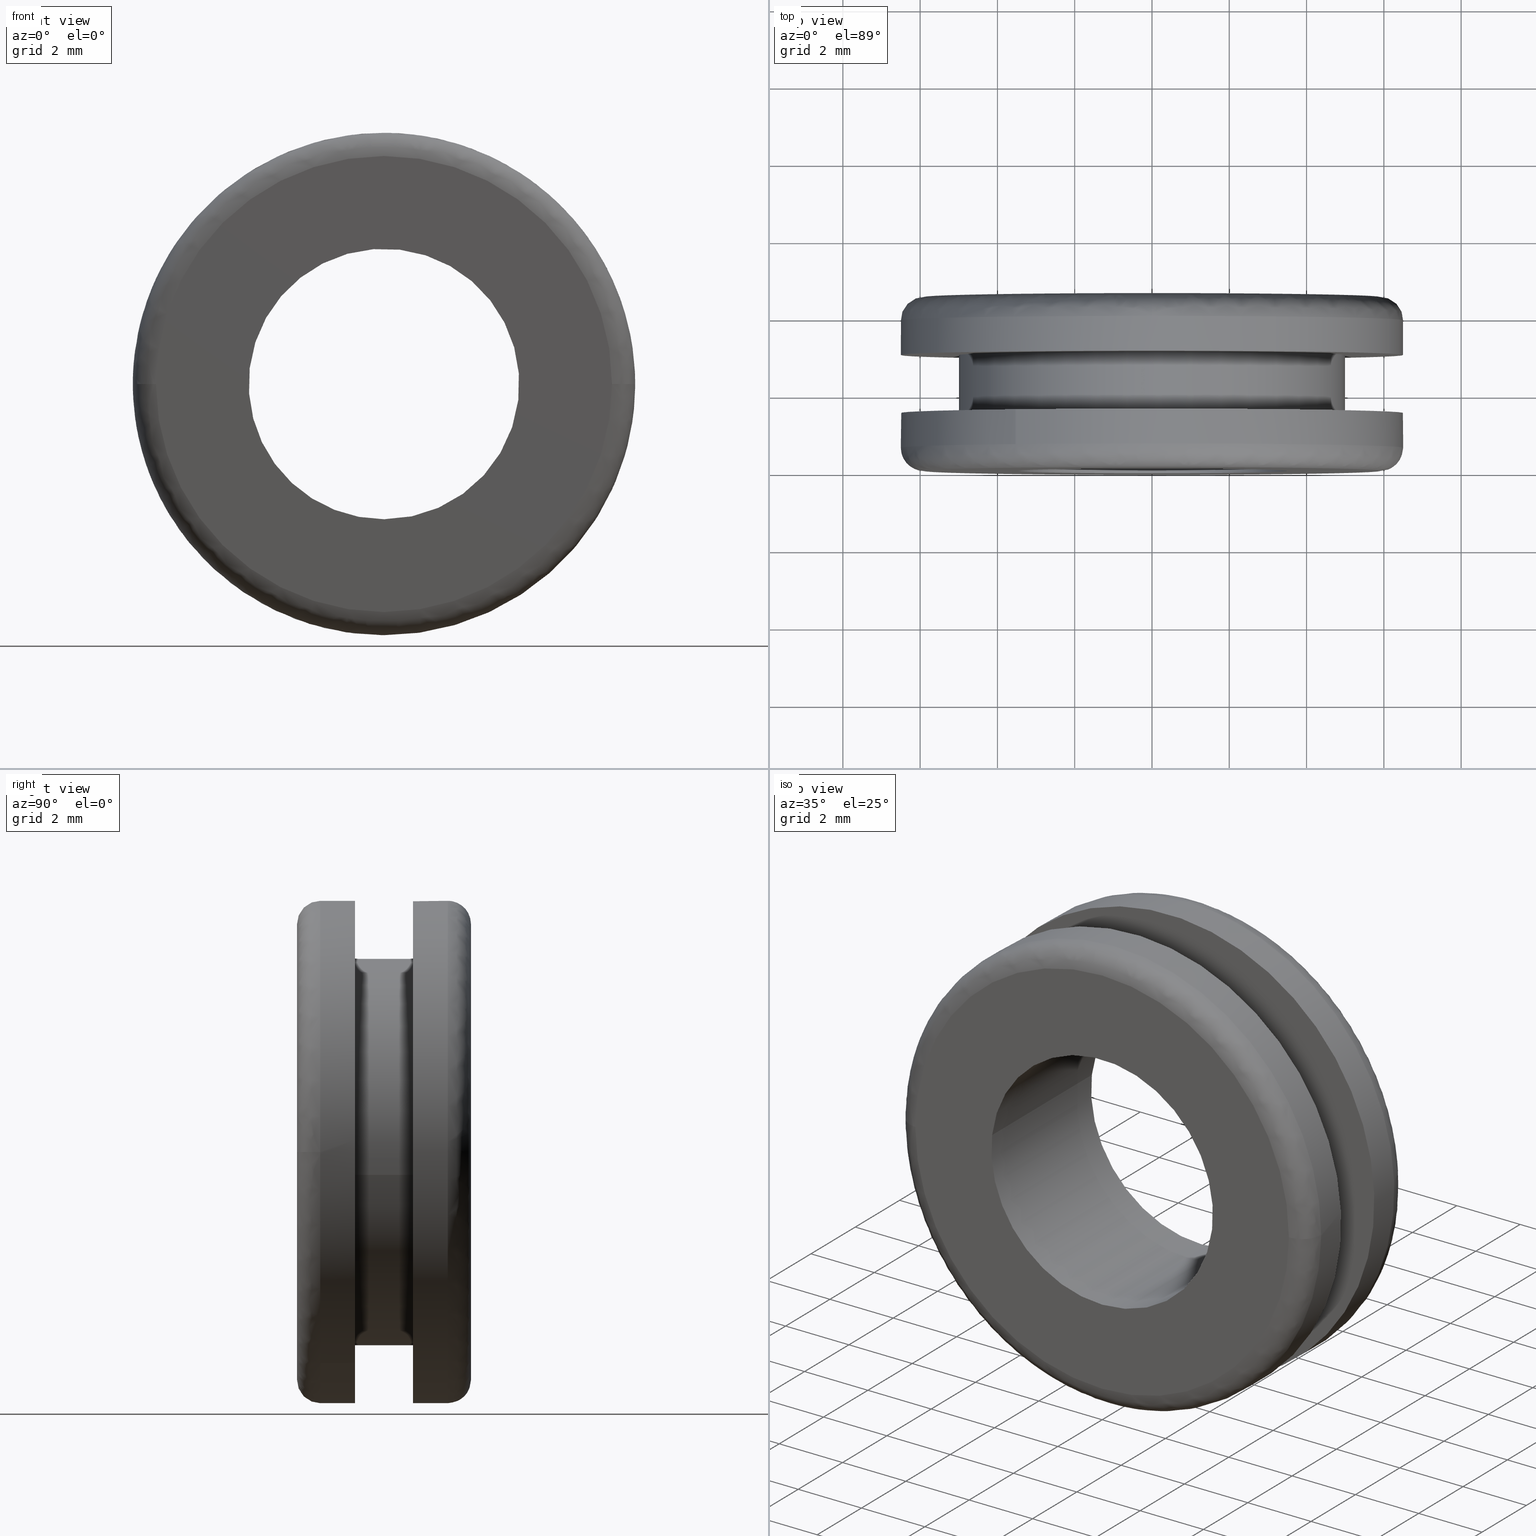
[diagram: canonical four-view strip — front | top / right | iso, engineering-drawing reading convention]
A machine part, canonical four-view strip (front | top / right | iso — engineering-drawing reading convention). The complete STEP part file that produces these views, byte-faithful:
ISO-10303-21;
HEADER;

FILE_DESCRIPTION( (''), '2;1');
FILE_NAME ('PC14.7972.TM_NG_79_C_CRUL_29227.stp','2019-12-12T16:34:47',(''),(''),'spGate 15.6.1','','');

FILE_SCHEMA (('AUTOMOTIVE_DESIGN'));
ENDSEC;

DATA;
#10=(GEOMETRIC_REPRESENTATION_CONTEXT(3) GLOBAL_UNCERTAINTY_ASSIGNED_CONTEXT((#11)) GLOBAL_UNIT_ASSIGNED_CONTEXT((#12,#13,#14)) REPRESENTATION_CONTEXT('ID1','3D'));
#11=UNCERTAINTY_MEASURE_WITH_UNIT(LENGTH_MEASURE(0.01),#15,'DISTANCE_ACCURACY_VALUE','Maximum model space distance between geometric entities at asserted connectivities');
#12=(NAMED_UNIT(*) SI_UNIT($,.STERADIAN.) SOLID_ANGLE_UNIT());
#13=(CONVERSION_BASED_UNIT('DEGREE',#16) NAMED_UNIT(#17) PLANE_ANGLE_UNIT());
#14=(LENGTH_UNIT() NAMED_UNIT(*) SI_UNIT(.MILLI.,.METRE.));
#15=(LENGTH_UNIT() NAMED_UNIT(*) SI_UNIT(.MILLI.,.METRE.));
#16=PLANE_ANGLE_MEASURE_WITH_UNIT(PLANE_ANGLE_MEASURE(0.01745329252),#18);
#17=DIMENSIONAL_EXPONENTS(0.0,0.0,0.0,0.0,0.0,0.0,0.0);
#18=(NAMED_UNIT(*) PLANE_ANGLE_UNIT() SI_UNIT($,.RADIAN.));
#19=MANIFOLD_SOLID_BREP('TM_NG_79_C_CRUL',#31);
#20=ADVANCED_BREP_SHAPE_REPRESENTATION('',(#19),#10);
#21=APPLICATION_CONTEXT('');
#22=APPLICATION_PROTOCOL_DEFINITION('International Standard','automotive_design',1999,#21);
#23=PRODUCT_DEFINITION_CONTEXT('',#21,'design');
#24=PRODUCT_CONTEXT('',#21,'mechanical');
#25=PRODUCT('','','',(#24));
#26=PRODUCT_DEFINITION_FORMATION_WITH_SPECIFIED_SOURCE('','',#25,.NOT_KNOWN.);
#27=PRODUCT_RELATED_PRODUCT_CATEGORY('tool','tool',(#25));
#28=PRODUCT_DEFINITION('','',#26,#23);
#29=PRODUCT_DEFINITION_SHAPE('','',#28);
#30=SHAPE_DEFINITION_REPRESENTATION(#29,#20);
#31=CLOSED_SHELL('',(#40,#41,#42,#43,#44,#45,#46,#47,#48,#49,#50,#51,#52,#53,#54,#55));
#32=COLOUR_RGB('',0.00000000000E+000,0.00000000000E+000,0.00000000000E+000);
#33=FILL_AREA_STYLE_COLOUR('',#32);
#34=FILL_AREA_STYLE('',(#33));
#35=SURFACE_STYLE_FILL_AREA(#34);
#36=SURFACE_SIDE_STYLE('',(#35));
#37=SURFACE_STYLE_USAGE(.BOTH.,#36);
#38=PRESENTATION_STYLE_ASSIGNMENT((#37));
#39=STYLED_ITEM('',(#38),#19);
#40=ADVANCED_FACE('',(#57,#58),#56,.F.);
#41=ADVANCED_FACE('',(#68,#69),#67,.F.);
#42=ADVANCED_FACE('',(#79,#80),#78,.F.);
#43=ADVANCED_FACE('',(#90,#91),#89,.F.);
#44=ADVANCED_FACE('',(#101),#100,.T.);
#45=ADVANCED_FACE('',(#111),#110,.T.);
#46=ADVANCED_FACE('',(#121),#120,.T.);
#47=ADVANCED_FACE('',(#131),#130,.T.);
#48=ADVANCED_FACE('',(#141),#140,.T.);
#49=ADVANCED_FACE('',(#151),#150,.T.);
#50=ADVANCED_FACE('',(#161),#160,.T.);
#51=ADVANCED_FACE('',(#171),#170,.T.);
#52=ADVANCED_FACE('',(#181),#180,.F.);
#53=ADVANCED_FACE('',(#191),#190,.F.);
#54=ADVANCED_FACE('',(#201),#200,.T.);
#55=ADVANCED_FACE('',(#211),#210,.T.);
#56=PLANE('',#223);
#57=FACE_OUTER_BOUND('',#224,.T.);
#58=FACE_BOUND('',#225,.T.);
#59=COLOUR_RGB('',1.00000000000E+000,1.00000000000E+000,1.00000000000E+000);
#60=FILL_AREA_STYLE_COLOUR('',#59);
#61=FILL_AREA_STYLE('',(#60));
#62=SURFACE_STYLE_FILL_AREA(#61);
#63=SURFACE_SIDE_STYLE('',(#62));
#64=SURFACE_STYLE_USAGE(.BOTH.,#63);
#65=PRESENTATION_STYLE_ASSIGNMENT((#64));
#66=STYLED_ITEM('',(#65),#40);
#67=PLANE('',#229);
#68=FACE_OUTER_BOUND('',#230,.T.);
#69=FACE_BOUND('',#231,.T.);
#70=COLOUR_RGB('',1.00000000000E+000,1.00000000000E+000,1.00000000000E+000);
#71=FILL_AREA_STYLE_COLOUR('',#70);
#72=FILL_AREA_STYLE('',(#71));
#73=SURFACE_STYLE_FILL_AREA(#72);
#74=SURFACE_SIDE_STYLE('',(#73));
#75=SURFACE_STYLE_USAGE(.BOTH.,#74);
#76=PRESENTATION_STYLE_ASSIGNMENT((#75));
#77=STYLED_ITEM('',(#76),#41);
#78=PLANE('',#235);
#79=FACE_OUTER_BOUND('',#236,.T.);
#80=FACE_BOUND('',#237,.T.);
#81=COLOUR_RGB('',1.00000000000E+000,1.00000000000E+000,1.00000000000E+000);
#82=FILL_AREA_STYLE_COLOUR('',#81);
#83=FILL_AREA_STYLE('',(#82));
#84=SURFACE_STYLE_FILL_AREA(#83);
#85=SURFACE_SIDE_STYLE('',(#84));
#86=SURFACE_STYLE_USAGE(.BOTH.,#85);
#87=PRESENTATION_STYLE_ASSIGNMENT((#86));
#88=STYLED_ITEM('',(#87),#42);
#89=PLANE('',#241);
#90=FACE_OUTER_BOUND('',#242,.T.);
#91=FACE_BOUND('',#243,.T.);
#92=COLOUR_RGB('',1.00000000000E+000,1.00000000000E+000,1.00000000000E+000);
#93=FILL_AREA_STYLE_COLOUR('',#92);
#94=FILL_AREA_STYLE('',(#93));
#95=SURFACE_STYLE_FILL_AREA(#94);
#96=SURFACE_SIDE_STYLE('',(#95));
#97=SURFACE_STYLE_USAGE(.BOTH.,#96);
#98=PRESENTATION_STYLE_ASSIGNMENT((#97));
#99=STYLED_ITEM('',(#98),#43);
#100=CYLINDRICAL_SURFACE('',#247,5.00000000000E+000);
#101=FACE_OUTER_BOUND('',#248,.T.);
#102=COLOUR_RGB('',1.00000000000E+000,1.00000000000E+000,1.00000000000E+000);
#103=FILL_AREA_STYLE_COLOUR('',#102);
#104=FILL_AREA_STYLE('',(#103));
#105=SURFACE_STYLE_FILL_AREA(#104);
#106=SURFACE_SIDE_STYLE('',(#105));
#107=SURFACE_STYLE_USAGE(.BOTH.,#106);
#108=PRESENTATION_STYLE_ASSIGNMENT((#107));
#109=STYLED_ITEM('',(#108),#44);
#110=CYLINDRICAL_SURFACE('',#252,5.00000000000E+000);
#111=FACE_OUTER_BOUND('',#253,.T.);
#112=COLOUR_RGB('',1.00000000000E+000,1.00000000000E+000,1.00000000000E+000);
#113=FILL_AREA_STYLE_COLOUR('',#112);
#114=FILL_AREA_STYLE('',(#113));
#115=SURFACE_STYLE_FILL_AREA(#114);
#116=SURFACE_SIDE_STYLE('',(#115));
#117=SURFACE_STYLE_USAGE(.BOTH.,#116);
#118=PRESENTATION_STYLE_ASSIGNMENT((#117));
#119=STYLED_ITEM('',(#118),#45);
#120=CYLINDRICAL_SURFACE('',#257,6.50000000000E+000);
#121=FACE_OUTER_BOUND('',#258,.T.);
#122=COLOUR_RGB('',1.00000000000E+000,1.00000000000E+000,1.00000000000E+000);
#123=FILL_AREA_STYLE_COLOUR('',#122);
#124=FILL_AREA_STYLE('',(#123));
#125=SURFACE_STYLE_FILL_AREA(#124);
#126=SURFACE_SIDE_STYLE('',(#125));
#127=SURFACE_STYLE_USAGE(.BOTH.,#126);
#128=PRESENTATION_STYLE_ASSIGNMENT((#127));
#129=STYLED_ITEM('',(#128),#46);
#130=CYLINDRICAL_SURFACE('',#262,6.50000000000E+000);
#131=FACE_OUTER_BOUND('',#263,.T.);
#132=COLOUR_RGB('',1.00000000000E+000,1.00000000000E+000,1.00000000000E+000);
#133=FILL_AREA_STYLE_COLOUR('',#132);
#134=FILL_AREA_STYLE('',(#133));
#135=SURFACE_STYLE_FILL_AREA(#134);
#136=SURFACE_SIDE_STYLE('',(#135));
#137=SURFACE_STYLE_USAGE(.BOTH.,#136);
#138=PRESENTATION_STYLE_ASSIGNMENT((#137));
#139=STYLED_ITEM('',(#138),#47);
#140=( BOUNDED_SURFACE() B_SPLINE_SURFACE( 2,2,((#264,#265,#266,#267,#268),(#269,#270,#271,#272,#273),(#274,#275,#276,#277,#278),(#279,#280,#281,#282,#283),(#284,#285,#286,#287,#288)), .UNSPECIFIED.,.F.,.F.,.F.) B_SPLINE_SURFACE_WITH_KNOTS((3,2,3),(3,2,3),(0.00000000000E+000,5.00000000000E-001,1.00000000000E+000),(0.00000000000E+000,5.00000000000E-001,1.00000000000E+000), .UNSPECIFIED. ) GEOMETRIC_REPRESENTATION_ITEM() RATIONAL_B_SPLINE_SURFACE(((1.00000000000E+000,7.07106781187E-001,1.00000000000E+000,7.07106781187E-001,1.00000000000E+000),(7.07106781187E-001,5.00000000000E-001,7.07106781187E-001,5.00000000000E-001,7.07106781187E-001),(1.00000000000E+000,7.07106781187E-001,1.00000000000E+000,7.07106781187E-001,1.00000000000E+000),(7.07106781187E-001,5.00000000000E-001,7.07106781187E-001,5.00000000000E-001,7.07106781187E-001),(1.00000000000E+000,7.07106781187E-001,1.00000000000E+000,7.07106781187E-001,1.00000000000E+000))) REPRESENTATION_ITEM('') SURFACE() );
#141=FACE_OUTER_BOUND('',#289,.T.);
#142=COLOUR_RGB('',1.00000000000E+000,1.00000000000E+000,1.00000000000E+000);
#143=FILL_AREA_STYLE_COLOUR('',#142);
#144=FILL_AREA_STYLE('',(#143));
#145=SURFACE_STYLE_FILL_AREA(#144);
#146=SURFACE_SIDE_STYLE('',(#145));
#147=SURFACE_STYLE_USAGE(.BOTH.,#146);
#148=PRESENTATION_STYLE_ASSIGNMENT((#147));
#149=STYLED_ITEM('',(#148),#48);
#150=( BOUNDED_SURFACE() B_SPLINE_SURFACE( 2,2,((#290,#291,#292,#293,#294),(#295,#296,#297,#298,#299),(#300,#301,#302,#303,#304),(#305,#306,#307,#308,#309),(#310,#311,#312,#313,#314)), .UNSPECIFIED.,.F.,.F.,.F.) B_SPLINE_SURFACE_WITH_KNOTS((3,2,3),(3,2,3),(0.00000000000E+000,5.00000000000E-001,1.00000000000E+000),(0.00000000000E+000,5.00000000000E-001,1.00000000000E+000), .UNSPECIFIED. ) GEOMETRIC_REPRESENTATION_ITEM() RATIONAL_B_SPLINE_SURFACE(((1.00000000000E+000,7.07106781187E-001,1.00000000000E+000,7.07106781187E-001,1.00000000000E+000),(7.07106781187E-001,5.00000000000E-001,7.07106781187E-001,5.00000000000E-001,7.07106781187E-001),(1.00000000000E+000,7.07106781187E-001,1.00000000000E+000,7.07106781187E-001,1.00000000000E+000),(7.07106781187E-001,5.00000000000E-001,7.07106781187E-001,5.00000000000E-001,7.07106781187E-001),(1.00000000000E+000,7.07106781187E-001,1.00000000000E+000,7.07106781187E-001,1.00000000000E+000))) REPRESENTATION_ITEM('') SURFACE() );
#151=FACE_OUTER_BOUND('',#315,.T.);
#152=COLOUR_RGB('',1.00000000000E+000,1.00000000000E+000,1.00000000000E+000);
#153=FILL_AREA_STYLE_COLOUR('',#152);
#154=FILL_AREA_STYLE('',(#153));
#155=SURFACE_STYLE_FILL_AREA(#154);
#156=SURFACE_SIDE_STYLE('',(#155));
#157=SURFACE_STYLE_USAGE(.BOTH.,#156);
#158=PRESENTATION_STYLE_ASSIGNMENT((#157));
#159=STYLED_ITEM('',(#158),#49);
#160=( BOUNDED_SURFACE() B_SPLINE_SURFACE( 2,2,((#316,#317,#318,#319,#320),(#321,#322,#323,#324,#325),(#326,#327,#328,#329,#330),(#331,#332,#333,#334,#335),(#336,#337,#338,#339,#340)), .UNSPECIFIED.,.F.,.F.,.F.) B_SPLINE_SURFACE_WITH_KNOTS((3,2,3),(3,2,3),(0.00000000000E+000,5.00000000000E-001,1.00000000000E+000),(0.00000000000E+000,5.00000000000E-001,1.00000000000E+000), .UNSPECIFIED. ) GEOMETRIC_REPRESENTATION_ITEM() RATIONAL_B_SPLINE_SURFACE(((1.00000000000E+000,7.07106779151E-001,1.00000000000E+000,7.07106779151E-001,1.00000000000E+000),(7.07106781187E-001,4.99999998561E-001,7.07106781187E-001,4.99999998561E-001,7.07106781187E-001),(1.00000000000E+000,7.07106779151E-001,1.00000000000E+000,7.07106779151E-001,1.00000000000E+000),(7.07106781187E-001,4.99999998561E-001,7.07106781187E-001,4.99999998561E-001,7.07106781187E-001),(1.00000000000E+000,7.07106779151E-001,1.00000000000E+000,7.07106779151E-001,1.00000000000E+000))) REPRESENTATION_ITEM('') SURFACE() );
#161=FACE_OUTER_BOUND('',#341,.T.);
#162=COLOUR_RGB('',1.00000000000E+000,1.00000000000E+000,1.00000000000E+000);
#163=FILL_AREA_STYLE_COLOUR('',#162);
#164=FILL_AREA_STYLE('',(#163));
#165=SURFACE_STYLE_FILL_AREA(#164);
#166=SURFACE_SIDE_STYLE('',(#165));
#167=SURFACE_STYLE_USAGE(.BOTH.,#166);
#168=PRESENTATION_STYLE_ASSIGNMENT((#167));
#169=STYLED_ITEM('',(#168),#50);
#170=( BOUNDED_SURFACE() B_SPLINE_SURFACE( 2,2,((#342,#343,#344,#345,#346),(#347,#348,#349,#350,#351),(#352,#353,#354,#355,#356),(#357,#358,#359,#360,#361),(#362,#363,#364,#365,#366)), .UNSPECIFIED.,.F.,.F.,.F.) B_SPLINE_SURFACE_WITH_KNOTS((3,2,3),(3,2,3),(0.00000000000E+000,5.00000000000E-001,1.00000000000E+000),(0.00000000000E+000,5.00000000000E-001,1.00000000000E+000), .UNSPECIFIED. ) GEOMETRIC_REPRESENTATION_ITEM() RATIONAL_B_SPLINE_SURFACE(((1.00000000000E+000,7.07106779151E-001,1.00000000000E+000,7.07106779151E-001,1.00000000000E+000),(7.07106781187E-001,4.99999998561E-001,7.07106781187E-001,4.99999998561E-001,7.07106781187E-001),(1.00000000000E+000,7.07106779151E-001,1.00000000000E+000,7.07106779151E-001,1.00000000000E+000),(7.07106781187E-001,4.99999998561E-001,7.07106781187E-001,4.99999998561E-001,7.07106781187E-001),(1.00000000000E+000,7.07106779151E-001,1.00000000000E+000,7.07106779151E-001,1.00000000000E+000))) REPRESENTATION_ITEM('') SURFACE() );
#171=FACE_OUTER_BOUND('',#367,.T.);
#172=COLOUR_RGB('',1.00000000000E+000,1.00000000000E+000,1.00000000000E+000);
#173=FILL_AREA_STYLE_COLOUR('',#172);
#174=FILL_AREA_STYLE('',(#173));
#175=SURFACE_STYLE_FILL_AREA(#174);
#176=SURFACE_SIDE_STYLE('',(#175));
#177=SURFACE_STYLE_USAGE(.BOTH.,#176);
#178=PRESENTATION_STYLE_ASSIGNMENT((#177));
#179=STYLED_ITEM('',(#178),#51);
#180=CYLINDRICAL_SURFACE('',#371,3.50000000000E+000);
#181=FACE_OUTER_BOUND('',#372,.T.);
#182=COLOUR_RGB('',1.00000000000E+000,1.00000000000E+000,1.00000000000E+000);
#183=FILL_AREA_STYLE_COLOUR('',#182);
#184=FILL_AREA_STYLE('',(#183));
#185=SURFACE_STYLE_FILL_AREA(#184);
#186=SURFACE_SIDE_STYLE('',(#185));
#187=SURFACE_STYLE_USAGE(.BOTH.,#186);
#188=PRESENTATION_STYLE_ASSIGNMENT((#187));
#189=STYLED_ITEM('',(#188),#52);
#190=CYLINDRICAL_SURFACE('',#376,3.50000000000E+000);
#191=FACE_OUTER_BOUND('',#377,.T.);
#192=COLOUR_RGB('',1.00000000000E+000,1.00000000000E+000,1.00000000000E+000);
#193=FILL_AREA_STYLE_COLOUR('',#192);
#194=FILL_AREA_STYLE('',(#193));
#195=SURFACE_STYLE_FILL_AREA(#194);
#196=SURFACE_SIDE_STYLE('',(#195));
#197=SURFACE_STYLE_USAGE(.BOTH.,#196);
#198=PRESENTATION_STYLE_ASSIGNMENT((#197));
#199=STYLED_ITEM('',(#198),#53);
#200=CYLINDRICAL_SURFACE('',#381,6.50000000000E+000);
#201=FACE_OUTER_BOUND('',#382,.T.);
#202=COLOUR_RGB('',1.00000000000E+000,1.00000000000E+000,1.00000000000E+000);
#203=FILL_AREA_STYLE_COLOUR('',#202);
#204=FILL_AREA_STYLE('',(#203));
#205=SURFACE_STYLE_FILL_AREA(#204);
#206=SURFACE_SIDE_STYLE('',(#205));
#207=SURFACE_STYLE_USAGE(.BOTH.,#206);
#208=PRESENTATION_STYLE_ASSIGNMENT((#207));
#209=STYLED_ITEM('',(#208),#54);
#210=CYLINDRICAL_SURFACE('',#386,6.50000000000E+000);
#211=FACE_OUTER_BOUND('',#387,.T.);
#212=COLOUR_RGB('',1.00000000000E+000,1.00000000000E+000,1.00000000000E+000);
#213=FILL_AREA_STYLE_COLOUR('',#212);
#214=FILL_AREA_STYLE('',(#213));
#215=SURFACE_STYLE_FILL_AREA(#214);
#216=SURFACE_SIDE_STYLE('',(#215));
#217=SURFACE_STYLE_USAGE(.BOTH.,#216);
#218=PRESENTATION_STYLE_ASSIGNMENT((#217));
#219=STYLED_ITEM('',(#218),#55);
#220=CARTESIAN_POINT('',(-1.35099962990E+001,1.50000000000E+000,1.49500000000E+001));
#221=DIRECTION('',(0.00000000000E+000,-1.00000000000E+000,0.00000000000E+000));
#222=DIRECTION('',(0.00000000000E+000,0.00000000000E+000,-1.00000000000E+000));
#223=AXIS2_PLACEMENT_3D('',#220,#221,#222);
#224=EDGE_LOOP('',(#388,#389,#390));
#225=EDGE_LOOP('',(#391,#392,#393));
#226=CARTESIAN_POINT('',(-1.35099962990E+001,3.00000000000E+000,-8.44999999999E+000));
#227=DIRECTION('',(0.00000000000E+000,1.00000000000E+000,0.00000000000E+000));
#228=DIRECTION('',(0.00000000000E+000,0.00000000000E+000,1.00000000000E+000));
#229=AXIS2_PLACEMENT_3D('',#226,#227,#228);
#230=EDGE_LOOP('',(#394,#395,#396));
#231=EDGE_LOOP('',(#397,#398,#399));
#232=CARTESIAN_POINT('',(-7.67000000224E+000,4.50000000000E+000,1.22629197190E+001));
#233=DIRECTION('',(0.00000000000E+000,-1.00000000000E+000,0.00000000000E+000));
#234=DIRECTION('',(0.00000000000E+000,0.00000000000E+000,-1.00000000000E+000));
#235=AXIS2_PLACEMENT_3D('',#232,#233,#234);
#236=EDGE_LOOP('',(#400,#401,#402));
#237=EDGE_LOOP('',(#403,#404,#405));
#238=CARTESIAN_POINT('',(-1.22629197182E+001,-8.63347500000E-016,-1.35700000004E+001));
#239=DIRECTION('',(0.00000000000E+000,1.00000000000E+000,0.00000000000E+000));
#240=DIRECTION('',(0.00000000000E+000,0.00000000000E+000,1.00000000000E+000));
#241=AXIS2_PLACEMENT_3D('',#238,#239,#240);
#242=EDGE_LOOP('',(#406,#407,#408));
#243=EDGE_LOOP('',(#409,#410,#411));
#244=CARTESIAN_POINT('',(-7.27569771743E-017,3.03750000000E+000,-1.00156952261E-015));
#245=DIRECTION('',(-1.80395372549E-016,1.00000000000E+000,-1.51764718070E-015));
#246=DIRECTION('',(-9.93009526364E-001,-3.45126646034E-031,1.18034234657E-001));
#247=AXIS2_PLACEMENT_3D('',#244,#245,#246);
#248=EDGE_LOOP('',(#412,#413,#414,#415));
#249=CARTESIAN_POINT('',(-7.27569771743E-017,3.03750000000E+000,-1.00156952261E-015));
#250=DIRECTION('',(-1.80395372549E-016,1.00000000000E+000,-1.51764718070E-015));
#251=DIRECTION('',(-9.93009526364E-001,-3.45126646034E-031,1.18034234657E-001));
#252=AXIS2_PLACEMENT_3D('',#249,#250,#251);
#253=EDGE_LOOP('',(#416,#417,#418,#419,#420,#421));
#254=CARTESIAN_POINT('',(-1.45266011121E-016,1.52250000000E+000,-9.82045915307E-016));
#255=DIRECTION('',(-3.07258401458E-016,1.00000000000E+000,-1.98543185887E-016));
#256=DIRECTION('',(-5.42728861529E-001,-0.00000000000E+000,8.39907960948E-001));
#257=AXIS2_PLACEMENT_3D('',#254,#255,#256);
#258=EDGE_LOOP('',(#422,#423,#424,#425,#426,#427,#428));
#259=CARTESIAN_POINT('',(-1.45266011121E-016,1.52250000000E+000,-9.82045915307E-016));
#260=DIRECTION('',(-3.07258401458E-016,1.00000000000E+000,-1.98543185887E-016));
#261=DIRECTION('',(-5.42728861529E-001,-0.00000000000E+000,8.39907960948E-001));
#262=AXIS2_PLACEMENT_3D('',#259,#260,#261);
#263=EDGE_LOOP('',(#429,#430,#431,#432,#433,#434,#435,#436));
#264=CARTESIAN_POINT('',(-5.85321179546E-015,3.90000000000E+000,5.30000000000E+000));
#265=CARTESIAN_POINT('',(-6.33986825548E-015,4.50000000000E+000,5.30000000000E+000));
#266=CARTESIAN_POINT('',(-6.41334463671E-015,4.50000000000E+000,5.90000000000E+000));
#267=CARTESIAN_POINT('',(-6.48682101794E-015,4.50000000000E+000,6.50000000000E+000));
#268=CARTESIAN_POINT('',(-6.00016455791E-015,3.90000000000E+000,6.50000000000E+000));
#269=CARTESIAN_POINT('',(-5.30000000000E+000,3.90000000000E+000,5.30000000000E+000));
#270=CARTESIAN_POINT('',(-5.30000000000E+000,4.50000000000E+000,5.30000000000E+000));
#271=CARTESIAN_POINT('',(-5.90000000000E+000,4.50000000000E+000,5.90000000000E+000));
#272=CARTESIAN_POINT('',(-6.50000000000E+000,4.50000000000E+000,6.50000000000E+000));
#273=CARTESIAN_POINT('',(-6.50000000000E+000,3.90000000000E+000,6.50000000000E+000));
#274=CARTESIAN_POINT('',(-5.30000000000E+000,3.90000000000E+000,-1.76717447255E-014));
#275=CARTESIAN_POINT('',(-5.30000000000E+000,4.50000000000E+000,-2.17152675964E-014));
#276=CARTESIAN_POINT('',(-5.90000000000E+000,4.50000000000E+000,-2.17520045736E-014));
#277=CARTESIAN_POINT('',(-6.50000000000E+000,4.50000000000E+000,-2.17887415509E-014));
#278=CARTESIAN_POINT('',(-6.50000000000E+000,3.90000000000E+000,-1.77452186800E-014));
#279=CARTESIAN_POINT('',(-5.30000000000E+000,3.90000000000E+000,-5.30000000000E+000));
#280=CARTESIAN_POINT('',(-5.30000000000E+000,4.50000000000E+000,-5.30000000000E+000));
#281=CARTESIAN_POINT('',(-5.90000000000E+000,4.50000000000E+000,-5.90000000000E+000));
#282=CARTESIAN_POINT('',(-6.50000000000E+000,4.50000000000E+000,-6.50000000000E+000));
#283=CARTESIAN_POINT('',(-6.50000000000E+000,3.90000000000E+000,-6.50000000000E+000));
#284=CARTESIAN_POINT('',(-5.20419186395E-015,3.90000000000E+000,-5.30000000000E+000));
#285=CARTESIAN_POINT('',(-5.69084832398E-015,4.50000000000E+000,-5.30000000000E+000));
#286=CARTESIAN_POINT('',(-5.69085075070E-015,4.50000000000E+000,-5.90000000000E+000));
#287=CARTESIAN_POINT('',(-5.69085317742E-015,4.50000000000E+000,-6.50000000000E+000));
#288=CARTESIAN_POINT('',(-5.20419671739E-015,3.90000000000E+000,-6.50000000000E+000));
#289=EDGE_LOOP('',(#437,#438,#439,#440,#441,#442,#443));
#290=CARTESIAN_POINT('',(-5.20419186395E-015,3.90000000000E+000,-5.30000000000E+000));
#291=CARTESIAN_POINT('',(-5.69084832398E-015,4.50000000000E+000,-5.30000000000E+000));
#292=CARTESIAN_POINT('',(-5.69085075070E-015,4.50000000000E+000,-5.90000000000E+000));
#293=CARTESIAN_POINT('',(-5.69085317742E-015,4.50000000000E+000,-6.50000000000E+000));
#294=CARTESIAN_POINT('',(-5.20419671739E-015,3.90000000000E+000,-6.50000000000E+000));
#295=CARTESIAN_POINT('',(5.30000000000E+000,3.90000000000E+000,-5.30000000000E+000));
#296=CARTESIAN_POINT('',(5.30000000000E+000,4.50000000000E+000,-5.30000000000E+000));
#297=CARTESIAN_POINT('',(5.90000000000E+000,4.50000000000E+000,-5.90000000000E+000));
#298=CARTESIAN_POINT('',(6.50000000000E+000,4.50000000000E+000,-6.50000000000E+000));
#299=CARTESIAN_POINT('',(6.50000000000E+000,3.90000000000E+000,-6.50000000000E+000));
#300=CARTESIAN_POINT('',(5.30000000000E+000,3.90000000000E+000,-1.76717875976E-014));
#301=CARTESIAN_POINT('',(5.30000000000E+000,4.50000000000E+000,-2.17153104684E-014));
#302=CARTESIAN_POINT('',(5.90000000000E+000,4.50000000000E+000,-2.17520522991E-014));
#303=CARTESIAN_POINT('',(6.50000000000E+000,4.50000000000E+000,-2.17887941298E-014));
#304=CARTESIAN_POINT('',(6.50000000000E+000,3.90000000000E+000,-1.77452712590E-014));
#305=CARTESIAN_POINT('',(5.30000000000E+000,3.90000000000E+000,5.30000000000E+000));
#306=CARTESIAN_POINT('',(5.30000000000E+000,4.50000000000E+000,5.30000000000E+000));
#307=CARTESIAN_POINT('',(5.90000000000E+000,4.50000000000E+000,5.90000000000E+000));
#308=CARTESIAN_POINT('',(6.50000000000E+000,4.50000000000E+000,6.50000000000E+000));
#309=CARTESIAN_POINT('',(6.50000000000E+000,3.90000000000E+000,6.50000000000E+000));
#310=CARTESIAN_POINT('',(-4.55508618836E-015,3.90000000000E+000,5.30000000000E+000));
#311=CARTESIAN_POINT('',(-5.04174264838E-015,4.50000000000E+000,5.30000000000E+000));
#312=CARTESIAN_POINT('',(-4.96826141372E-015,4.50000000000E+000,5.90000000000E+000));
#313=CARTESIAN_POINT('',(-4.89478017905E-015,4.50000000000E+000,6.50000000000E+000));
#314=CARTESIAN_POINT('',(-4.40812371902E-015,3.90000000000E+000,6.50000000000E+000));
#315=EDGE_LOOP('',(#444,#445,#446,#447,#448));
#316=CARTESIAN_POINT('',(-6.50000000000E+000,6.00000000000E-001,4.58789093955E-014));
#317=CARTESIAN_POINT('',(-6.50000000000E+000,-3.45398706030E-009,4.51104094294E-014));
#318=CARTESIAN_POINT('',(-5.89999999655E+000,-2.10942374679E-014,4.51838858155E-014));
#319=CARTESIAN_POINT('',(-5.29999999309E+000,3.45394498183E-009,4.52573622016E-014));
#320=CARTESIAN_POINT('',(-5.30000000000E+000,6.00000006908E-001,4.60258621668E-014));
#321=CARTESIAN_POINT('',(-6.50000000000E+000,6.00000000000E-001,-6.50000000000E+000));
#322=CARTESIAN_POINT('',(-6.50000000000E+000,-3.45397870320E-009,-6.50000000000E+000));
#323=CARTESIAN_POINT('',(-5.89999999655E+000,-1.34953929026E-014,-5.89999999655E+000));
#324=CARTESIAN_POINT('',(-5.29999999309E+000,3.45395174249E-009,-5.29999999309E+000));
#325=CARTESIAN_POINT('',(-5.30000000000E+000,6.00000006908E-001,-5.30000000000E+000));
#326=CARTESIAN_POINT('',(-2.47555064814E-014,6.00000000001E-001,-6.50000000000E+000));
#327=CARTESIAN_POINT('',(3.63965585865E-014,-3.45331623830E-009,-6.50000000000E+000));
#328=CARTESIAN_POINT('',(3.63598212570E-014,5.87752069237E-013,-5.89999999655E+000));
#329=CARTESIAN_POINT('',(3.63230839275E-014,3.45449192354E-009,-5.29999999309E+000));
#330=CARTESIAN_POINT('',(-2.48289811400E-014,6.00000006908E-001,-5.30000000000E+000));
#331=CARTESIAN_POINT('',(6.50000000000E+000,6.00000000001E-001,-6.50000000000E+000));
#332=CARTESIAN_POINT('',(6.50000000000E+000,-3.45265376304E-009,-6.50000000000E+000));
#333=CARTESIAN_POINT('',(5.89999999655E+000,1.18908440815E-012,-5.89999999655E+000));
#334=CARTESIAN_POINT('',(5.29999999309E+000,3.45503206800E-009,-5.29999999309E+000));
#335=CARTESIAN_POINT('',(5.30000000000E+000,6.00000006909E-001,-5.30000000000E+000));
#336=CARTESIAN_POINT('',(6.50000000000E+000,6.00000000001E-001,4.66748772360E-014));
#337=CARTESIAN_POINT('',(6.50000000000E+000,-3.45266213778E-009,4.59063772699E-014));
#338=CARTESIAN_POINT('',(5.89999999655E+000,1.18161036511E-012,4.59063797011E-014));
#339=CARTESIAN_POINT('',(5.29999999309E+000,3.45502536245E-009,4.59063821322E-014));
#340=CARTESIAN_POINT('',(5.30000000000E+000,6.00000006909E-001,4.66748820983E-014));
#341=EDGE_LOOP('',(#449,#450,#451,#452,#453,#454,#455));
#342=CARTESIAN_POINT('',(6.50000000000E+000,6.00000000001E-001,4.66748772360E-014));
#343=CARTESIAN_POINT('',(6.50000000000E+000,-3.45266213778E-009,4.59063772699E-014));
#344=CARTESIAN_POINT('',(5.89999999655E+000,1.18149934281E-012,4.59063797011E-014));
#345=CARTESIAN_POINT('',(5.29999999309E+000,3.45502528395E-009,4.59063821322E-014));
#346=CARTESIAN_POINT('',(5.30000000000E+000,6.00000006909E-001,4.66748820983E-014));
#347=CARTESIAN_POINT('',(6.50000000000E+000,6.00000000001E-001,6.50000000000E+000));
#348=CARTESIAN_POINT('',(6.50000000000E+000,-3.45267049489E-009,6.50000000000E+000));
#349=CARTESIAN_POINT('',(5.89999999655E+000,1.17390049824E-012,5.89999999655E+000));
#350=CARTESIAN_POINT('',(5.29999999309E+000,3.45501852328E-009,5.29999999309E+000));
#351=CARTESIAN_POINT('',(5.30000000000E+000,6.00000006909E-001,5.30000000000E+000));
#352=CARTESIAN_POINT('',(-2.47554539025E-014,6.00000000001E-001,6.50000000000E+000));
#353=CARTESIAN_POINT('',(3.63966111654E-014,-3.45333295978E-009,6.50000000000E+000));
#354=CARTESIAN_POINT('',(3.63598689825E-014,5.72653036102E-013,5.89999999655E+000));
#355=CARTESIAN_POINT('',(3.63231267995E-014,3.45447834224E-009,5.29999999309E+000));
#356=CARTESIAN_POINT('',(-2.48289382679E-014,6.00000006908E-001,5.30000000000E+000));
#357=CARTESIAN_POINT('',(-6.50000000000E+000,6.00000000000E-001,6.50000000000E+000));
#358=CARTESIAN_POINT('',(-6.50000000000E+000,-3.45399543505E-009,6.50000000000E+000));
#359=CARTESIAN_POINT('',(-5.89999999655E+000,-2.86793028085E-014,5.89999999655E+000));
#360=CARTESIAN_POINT('',(-5.29999999309E+000,3.45393819777E-009,5.29999999309E+000));
#361=CARTESIAN_POINT('',(-5.30000000000E+000,6.00000006908E-001,5.30000000000E+000));
#362=CARTESIAN_POINT('',(-6.50000000000E+000,6.00000000000E-001,4.74709502344E-014));
#363=CARTESIAN_POINT('',(-6.50000000000E+000,-3.45398706030E-009,4.67024502683E-014));
#364=CARTESIAN_POINT('',(-5.89999999655E+000,-2.12052597703E-014,4.66289690376E-014));
#365=CARTESIAN_POINT('',(-5.29999999309E+000,3.45394490332E-009,4.65554878070E-014));
#366=CARTESIAN_POINT('',(-5.30000000000E+000,6.00000006908E-001,4.73239877739E-014));
#367=EDGE_LOOP('',(#456,#457,#458,#459,#460,#461,#462,#463));
#368=CARTESIAN_POINT('',(-3.02532469619E-013,4.50000000000E+000,-7.51689274686E-013));
#369=DIRECTION('',(-3.60124763988E-016,1.00000000000E+000,-1.95473636024E-015));
#370=DIRECTION('',(-9.93009593028E-001,-1.26882631386E-016,1.18033673816E-001));
#371=AXIS2_PLACEMENT_3D('',#368,#369,#370);
#372=EDGE_LOOP('',(#464,#465,#466,#467));
#373=CARTESIAN_POINT('',(-3.02532469619E-013,4.50000000000E+000,-7.51689274686E-013));
#374=DIRECTION('',(-3.60124763988E-016,1.00000000000E+000,-1.95473636024E-015));
#375=DIRECTION('',(-9.93009593028E-001,-1.26882631386E-016,1.18033673816E-001));
#376=AXIS2_PLACEMENT_3D('',#373,#374,#375);
#377=EDGE_LOOP('',(#468,#469,#470,#471,#472,#473));
#378=CARTESIAN_POINT('',(-6.42386568763E-016,3.92250000002E+000,-2.33112350225E-017));
#379=DIRECTION('',(5.19884938187E-016,1.00000000000E+000,-4.93065979711E-017));
#380=DIRECTION('',(-3.51617974392E-001,1.36642833800E-016,-9.36143578777E-001));
#381=AXIS2_PLACEMENT_3D('',#378,#379,#380);
#382=EDGE_LOOP('',(#474,#475,#476,#477,#478,#479));
#383=CARTESIAN_POINT('',(-6.42386568763E-016,3.92250000002E+000,-2.33112350225E-017));
#384=DIRECTION('',(5.19884938187E-016,1.00000000000E+000,-4.93065979711E-017));
#385=DIRECTION('',(-3.51617974392E-001,1.36642833800E-016,-9.36143578777E-001));
#386=AXIS2_PLACEMENT_3D('',#383,#384,#385);
#387=EDGE_LOOP('',(#480,#481,#482,#483,#484,#485));
#388=ORIENTED_EDGE('',*,*,#486,.F.);
#389=ORIENTED_EDGE('',*,*,#487,.F.);
#390=ORIENTED_EDGE('',*,*,#488,.F.);
#391=ORIENTED_EDGE('',*,*,#489,.T.);
#392=ORIENTED_EDGE('',*,*,#490,.T.);
#393=ORIENTED_EDGE('',*,*,#491,.T.);
#394=ORIENTED_EDGE('',*,*,#492,.T.);
#395=ORIENTED_EDGE('',*,*,#493,.T.);
#396=ORIENTED_EDGE('',*,*,#494,.T.);
#397=ORIENTED_EDGE('',*,*,#495,.F.);
#398=ORIENTED_EDGE('',*,*,#496,.F.);
#399=ORIENTED_EDGE('',*,*,#497,.F.);
#400=ORIENTED_EDGE('',*,*,#498,.F.);
#401=ORIENTED_EDGE('',*,*,#499,.F.);
#402=ORIENTED_EDGE('',*,*,#500,.F.);
#403=ORIENTED_EDGE('',*,*,#501,.T.);
#404=ORIENTED_EDGE('',*,*,#502,.T.);
#405=ORIENTED_EDGE('',*,*,#503,.T.);
#406=ORIENTED_EDGE('',*,*,#504,.T.);
#407=ORIENTED_EDGE('',*,*,#505,.T.);
#408=ORIENTED_EDGE('',*,*,#506,.T.);
#409=ORIENTED_EDGE('',*,*,#507,.F.);
#410=ORIENTED_EDGE('',*,*,#508,.F.);
#411=ORIENTED_EDGE('',*,*,#509,.F.);
#412=ORIENTED_EDGE('',*,*,#496,.T.);
#413=ORIENTED_EDGE('',*,*,#510,.F.);
#414=ORIENTED_EDGE('',*,*,#490,.F.);
#415=ORIENTED_EDGE('',*,*,#511,.T.);
#416=ORIENTED_EDGE('',*,*,#489,.F.);
#417=ORIENTED_EDGE('',*,*,#491,.F.);
#418=ORIENTED_EDGE('',*,*,#510,.T.);
#419=ORIENTED_EDGE('',*,*,#495,.T.);
#420=ORIENTED_EDGE('',*,*,#497,.T.);
#421=ORIENTED_EDGE('',*,*,#511,.F.);
#422=ORIENTED_EDGE('',*,*,#487,.T.);
#423=ORIENTED_EDGE('',*,*,#512,.F.);
#424=ORIENTED_EDGE('',*,*,#513,.F.);
#425=ORIENTED_EDGE('',*,*,#514,.F.);
#426=ORIENTED_EDGE('',*,*,#515,.F.);
#427=ORIENTED_EDGE('',*,*,#516,.F.);
#428=ORIENTED_EDGE('',*,*,#517,.T.);
#429=ORIENTED_EDGE('',*,*,#518,.F.);
#430=ORIENTED_EDGE('',*,*,#519,.F.);
#431=ORIENTED_EDGE('',*,*,#520,.F.);
#432=ORIENTED_EDGE('',*,*,#521,.F.);
#433=ORIENTED_EDGE('',*,*,#512,.T.);
#434=ORIENTED_EDGE('',*,*,#486,.T.);
#435=ORIENTED_EDGE('',*,*,#488,.T.);
#436=ORIENTED_EDGE('',*,*,#517,.F.);
#437=ORIENTED_EDGE('',*,*,#522,.F.);
#438=ORIENTED_EDGE('',*,*,#523,.F.);
#439=ORIENTED_EDGE('',*,*,#524,.F.);
#440=ORIENTED_EDGE('',*,*,#525,.F.);
#441=ORIENTED_EDGE('',*,*,#498,.T.);
#442=ORIENTED_EDGE('',*,*,#500,.T.);
#443=ORIENTED_EDGE('',*,*,#526,.T.);
#444=ORIENTED_EDGE('',*,*,#499,.T.);
#445=ORIENTED_EDGE('',*,*,#525,.T.);
#446=ORIENTED_EDGE('',*,*,#527,.F.);
#447=ORIENTED_EDGE('',*,*,#528,.F.);
#448=ORIENTED_EDGE('',*,*,#526,.F.);
#449=ORIENTED_EDGE('',*,*,#505,.F.);
#450=ORIENTED_EDGE('',*,*,#529,.F.);
#451=ORIENTED_EDGE('',*,*,#519,.T.);
#452=ORIENTED_EDGE('',*,*,#518,.T.);
#453=ORIENTED_EDGE('',*,*,#516,.T.);
#454=ORIENTED_EDGE('',*,*,#515,.T.);
#455=ORIENTED_EDGE('',*,*,#530,.T.);
#456=ORIENTED_EDGE('',*,*,#514,.T.);
#457=ORIENTED_EDGE('',*,*,#513,.T.);
#458=ORIENTED_EDGE('',*,*,#521,.T.);
#459=ORIENTED_EDGE('',*,*,#520,.T.);
#460=ORIENTED_EDGE('',*,*,#529,.T.);
#461=ORIENTED_EDGE('',*,*,#504,.F.);
#462=ORIENTED_EDGE('',*,*,#506,.F.);
#463=ORIENTED_EDGE('',*,*,#530,.F.);
#464=ORIENTED_EDGE('',*,*,#508,.T.);
#465=ORIENTED_EDGE('',*,*,#531,.T.);
#466=ORIENTED_EDGE('',*,*,#502,.F.);
#467=ORIENTED_EDGE('',*,*,#532,.F.);
#468=ORIENTED_EDGE('',*,*,#501,.F.);
#469=ORIENTED_EDGE('',*,*,#503,.F.);
#470=ORIENTED_EDGE('',*,*,#531,.F.);
#471=ORIENTED_EDGE('',*,*,#507,.T.);
#472=ORIENTED_EDGE('',*,*,#509,.T.);
#473=ORIENTED_EDGE('',*,*,#532,.T.);
#474=ORIENTED_EDGE('',*,*,#527,.T.);
#475=ORIENTED_EDGE('',*,*,#524,.T.);
#476=ORIENTED_EDGE('',*,*,#523,.T.);
#477=ORIENTED_EDGE('',*,*,#533,.F.);
#478=ORIENTED_EDGE('',*,*,#493,.F.);
#479=ORIENTED_EDGE('',*,*,#534,.T.);
#480=ORIENTED_EDGE('',*,*,#492,.F.);
#481=ORIENTED_EDGE('',*,*,#494,.F.);
#482=ORIENTED_EDGE('',*,*,#533,.T.);
#483=ORIENTED_EDGE('',*,*,#522,.T.);
#484=ORIENTED_EDGE('',*,*,#528,.T.);
#485=ORIENTED_EDGE('',*,*,#534,.F.);
#486=EDGE_CURVE('',#535,#536,#537,.T.);
#487=EDGE_CURVE('',#543,#535,#544,.T.);
#488=EDGE_CURVE('',#536,#543,#550,.T.);
#489=EDGE_CURVE('',#556,#557,#558,.T.);
#490=EDGE_CURVE('',#557,#564,#565,.T.);
#491=EDGE_CURVE('',#564,#556,#571,.T.);
#492=EDGE_CURVE('',#577,#578,#579,.T.);
#493=EDGE_CURVE('',#578,#585,#586,.T.);
#494=EDGE_CURVE('',#585,#577,#592,.T.);
#495=EDGE_CURVE('',#598,#599,#600,.T.);
#496=EDGE_CURVE('',#606,#598,#607,.T.);
#497=EDGE_CURVE('',#599,#606,#613,.T.);
#498=EDGE_CURVE('',#619,#620,#621,.T.);
#499=EDGE_CURVE('',#627,#619,#628,.T.);
#500=EDGE_CURVE('',#620,#627,#634,.T.);
#501=EDGE_CURVE('',#640,#641,#642,.T.);
#502=EDGE_CURVE('',#641,#648,#649,.T.);
#503=EDGE_CURVE('',#648,#640,#655,.T.);
#504=EDGE_CURVE('',#661,#662,#663,.T.);
#505=EDGE_CURVE('',#662,#669,#670,.T.);
#506=EDGE_CURVE('',#669,#661,#676,.T.);
#507=EDGE_CURVE('',#682,#683,#684,.T.);
#508=EDGE_CURVE('',#690,#682,#691,.T.);
#509=EDGE_CURVE('',#683,#690,#697,.T.);
#510=EDGE_CURVE('',#564,#598,#703,.T.);
#511=EDGE_CURVE('',#557,#606,#709,.T.);
#512=EDGE_CURVE('',#715,#535,#716,.T.);
#513=EDGE_CURVE('',#722,#715,#723,.T.);
#514=EDGE_CURVE('',#729,#722,#730,.T.);
#515=EDGE_CURVE('',#736,#729,#737,.T.);
#516=EDGE_CURVE('',#743,#736,#744,.T.);
#517=EDGE_CURVE('',#743,#543,#750,.T.);
#518=EDGE_CURVE('',#756,#743,#757,.T.);
#519=EDGE_CURVE('',#763,#756,#764,.T.);
#520=EDGE_CURVE('',#770,#763,#771,.T.);
#521=EDGE_CURVE('',#715,#770,#777,.T.);
#522=EDGE_CURVE('',#783,#784,#785,.T.);
#523=EDGE_CURVE('',#791,#783,#792,.T.);
#524=EDGE_CURVE('',#798,#791,#799,.T.);
#525=EDGE_CURVE('',#619,#798,#805,.T.);
#526=EDGE_CURVE('',#627,#784,#811,.T.);
#527=EDGE_CURVE('',#817,#798,#818,.T.);
#528=EDGE_CURVE('',#784,#817,#824,.T.);
#529=EDGE_CURVE('',#763,#662,#830,.T.);
#530=EDGE_CURVE('',#729,#669,#836,.T.);
#531=EDGE_CURVE('',#682,#648,#842,.T.);
#532=EDGE_CURVE('',#690,#641,#848,.T.);
#533=EDGE_CURVE('',#585,#783,#854,.T.);
#534=EDGE_CURVE('',#578,#817,#860,.T.);
#535=VERTEX_POINT('',#866);
#536=VERTEX_POINT('',#867);
#537=CIRCLE('',#871,6.50000000000E+000);
#538=COLOUR_RGB('',1.00000000000E+000,1.00000000000E+000,1.00000000000E+000);
#539=DRAUGHTING_PRE_DEFINED_CURVE_FONT('continuous');
#540=CURVE_STYLE( '',#539, POSITIVE_LENGTH_MEASURE(1.00000000000E-006),#538);
#541=PRESENTATION_STYLE_ASSIGNMENT((#540));
#542=STYLED_ITEM('',(#541),#486);
#543=VERTEX_POINT('',#872);
#544=CIRCLE('',#876,6.50000000000E+000);
#545=COLOUR_RGB('',1.00000000000E+000,1.00000000000E+000,1.00000000000E+000);
#546=DRAUGHTING_PRE_DEFINED_CURVE_FONT('continuous');
#547=CURVE_STYLE( '',#546, POSITIVE_LENGTH_MEASURE(1.00000000000E-006),#545);
#548=PRESENTATION_STYLE_ASSIGNMENT((#547));
#549=STYLED_ITEM('',(#548),#487);
#550=CIRCLE('',#880,6.50000000000E+000);
#551=COLOUR_RGB('',1.00000000000E+000,1.00000000000E+000,1.00000000000E+000);
#552=DRAUGHTING_PRE_DEFINED_CURVE_FONT('continuous');
#553=CURVE_STYLE( '',#552, POSITIVE_LENGTH_MEASURE(1.00000000000E-006),#551);
#554=PRESENTATION_STYLE_ASSIGNMENT((#553));
#555=STYLED_ITEM('',(#554),#488);
#556=VERTEX_POINT('',#881);
#557=VERTEX_POINT('',#882);
#558=CIRCLE('',#886,5.00000000000E+000);
#559=COLOUR_RGB('',1.00000000000E+000,1.00000000000E+000,1.00000000000E+000);
#560=DRAUGHTING_PRE_DEFINED_CURVE_FONT('continuous');
#561=CURVE_STYLE( '',#560, POSITIVE_LENGTH_MEASURE(1.00000000000E-006),#559);
#562=PRESENTATION_STYLE_ASSIGNMENT((#561));
#563=STYLED_ITEM('',(#562),#489);
#564=VERTEX_POINT('',#887);
#565=CIRCLE('',#891,5.00000000000E+000);
#566=COLOUR_RGB('',1.00000000000E+000,1.00000000000E+000,1.00000000000E+000);
#567=DRAUGHTING_PRE_DEFINED_CURVE_FONT('continuous');
#568=CURVE_STYLE( '',#567, POSITIVE_LENGTH_MEASURE(1.00000000000E-006),#566);
#569=PRESENTATION_STYLE_ASSIGNMENT((#568));
#570=STYLED_ITEM('',(#569),#490);
#571=CIRCLE('',#895,5.00000000000E+000);
#572=COLOUR_RGB('',1.00000000000E+000,1.00000000000E+000,1.00000000000E+000);
#573=DRAUGHTING_PRE_DEFINED_CURVE_FONT('continuous');
#574=CURVE_STYLE( '',#573, POSITIVE_LENGTH_MEASURE(1.00000000000E-006),#572);
#575=PRESENTATION_STYLE_ASSIGNMENT((#574));
#576=STYLED_ITEM('',(#575),#491);
#577=VERTEX_POINT('',#896);
#578=VERTEX_POINT('',#897);
#579=CIRCLE('',#901,6.50000000000E+000);
#580=COLOUR_RGB('',1.00000000000E+000,1.00000000000E+000,1.00000000000E+000);
#581=DRAUGHTING_PRE_DEFINED_CURVE_FONT('continuous');
#582=CURVE_STYLE( '',#581, POSITIVE_LENGTH_MEASURE(1.00000000000E-006),#580);
#583=PRESENTATION_STYLE_ASSIGNMENT((#582));
#584=STYLED_ITEM('',(#583),#492);
#585=VERTEX_POINT('',#902);
#586=CIRCLE('',#906,6.50000000000E+000);
#587=COLOUR_RGB('',1.00000000000E+000,1.00000000000E+000,1.00000000000E+000);
#588=DRAUGHTING_PRE_DEFINED_CURVE_FONT('continuous');
#589=CURVE_STYLE( '',#588, POSITIVE_LENGTH_MEASURE(1.00000000000E-006),#587);
#590=PRESENTATION_STYLE_ASSIGNMENT((#589));
#591=STYLED_ITEM('',(#590),#493);
#592=CIRCLE('',#910,6.50000000000E+000);
#593=COLOUR_RGB('',1.00000000000E+000,1.00000000000E+000,1.00000000000E+000);
#594=DRAUGHTING_PRE_DEFINED_CURVE_FONT('continuous');
#595=CURVE_STYLE( '',#594, POSITIVE_LENGTH_MEASURE(1.00000000000E-006),#593);
#596=PRESENTATION_STYLE_ASSIGNMENT((#595));
#597=STYLED_ITEM('',(#596),#494);
#598=VERTEX_POINT('',#911);
#599=VERTEX_POINT('',#912);
#600=CIRCLE('',#916,5.00000000000E+000);
#601=COLOUR_RGB('',1.00000000000E+000,1.00000000000E+000,1.00000000000E+000);
#602=DRAUGHTING_PRE_DEFINED_CURVE_FONT('continuous');
#603=CURVE_STYLE( '',#602, POSITIVE_LENGTH_MEASURE(1.00000000000E-006),#601);
#604=PRESENTATION_STYLE_ASSIGNMENT((#603));
#605=STYLED_ITEM('',(#604),#495);
#606=VERTEX_POINT('',#917);
#607=CIRCLE('',#921,5.00000000000E+000);
#608=COLOUR_RGB('',1.00000000000E+000,1.00000000000E+000,1.00000000000E+000);
#609=DRAUGHTING_PRE_DEFINED_CURVE_FONT('continuous');
#610=CURVE_STYLE( '',#609, POSITIVE_LENGTH_MEASURE(1.00000000000E-006),#608);
#611=PRESENTATION_STYLE_ASSIGNMENT((#610));
#612=STYLED_ITEM('',(#611),#496);
#613=CIRCLE('',#925,5.00000000000E+000);
#614=COLOUR_RGB('',1.00000000000E+000,1.00000000000E+000,1.00000000000E+000);
#615=DRAUGHTING_PRE_DEFINED_CURVE_FONT('continuous');
#616=CURVE_STYLE( '',#615, POSITIVE_LENGTH_MEASURE(1.00000000000E-006),#614);
#617=PRESENTATION_STYLE_ASSIGNMENT((#616));
#618=STYLED_ITEM('',(#617),#497);
#619=VERTEX_POINT('',#926);
#620=VERTEX_POINT('',#927);
#621=CIRCLE('',#931,5.90000000070E+000);
#622=COLOUR_RGB('',1.00000000000E+000,1.00000000000E+000,1.00000000000E+000);
#623=DRAUGHTING_PRE_DEFINED_CURVE_FONT('continuous');
#624=CURVE_STYLE( '',#623, POSITIVE_LENGTH_MEASURE(1.00000000000E-006),#622);
#625=PRESENTATION_STYLE_ASSIGNMENT((#624));
#626=STYLED_ITEM('',(#625),#498);
#627=VERTEX_POINT('',#932);
#628=CIRCLE('',#936,5.90000000070E+000);
#629=COLOUR_RGB('',1.00000000000E+000,1.00000000000E+000,1.00000000000E+000);
#630=DRAUGHTING_PRE_DEFINED_CURVE_FONT('continuous');
#631=CURVE_STYLE( '',#630, POSITIVE_LENGTH_MEASURE(1.00000000000E-006),#629);
#632=PRESENTATION_STYLE_ASSIGNMENT((#631));
#633=STYLED_ITEM('',(#632),#499);
#634=CIRCLE('',#940,5.90000000070E+000);
#635=COLOUR_RGB('',1.00000000000E+000,1.00000000000E+000,1.00000000000E+000);
#636=DRAUGHTING_PRE_DEFINED_CURVE_FONT('continuous');
#637=CURVE_STYLE( '',#636, POSITIVE_LENGTH_MEASURE(1.00000000000E-006),#635);
#638=PRESENTATION_STYLE_ASSIGNMENT((#637));
#639=STYLED_ITEM('',(#638),#500);
#640=VERTEX_POINT('',#941);
#641=VERTEX_POINT('',#942);
#642=CIRCLE('',#946,3.49999999999E+000);
#643=COLOUR_RGB('',1.00000000000E+000,1.00000000000E+000,1.00000000000E+000);
#644=DRAUGHTING_PRE_DEFINED_CURVE_FONT('continuous');
#645=CURVE_STYLE( '',#644, POSITIVE_LENGTH_MEASURE(1.00000000000E-006),#643);
#646=PRESENTATION_STYLE_ASSIGNMENT((#645));
#647=STYLED_ITEM('',(#646),#501);
#648=VERTEX_POINT('',#947);
#649=CIRCLE('',#951,3.49999999999E+000);
#650=COLOUR_RGB('',1.00000000000E+000,1.00000000000E+000,1.00000000000E+000);
#651=DRAUGHTING_PRE_DEFINED_CURVE_FONT('continuous');
#652=CURVE_STYLE( '',#651, POSITIVE_LENGTH_MEASURE(1.00000000000E-006),#650);
#653=PRESENTATION_STYLE_ASSIGNMENT((#652));
#654=STYLED_ITEM('',(#653),#502);
#655=CIRCLE('',#955,3.49999999999E+000);
#656=COLOUR_RGB('',1.00000000000E+000,1.00000000000E+000,1.00000000000E+000);
#657=DRAUGHTING_PRE_DEFINED_CURVE_FONT('continuous');
#658=CURVE_STYLE( '',#657, POSITIVE_LENGTH_MEASURE(1.00000000000E-006),#656);
#659=PRESENTATION_STYLE_ASSIGNMENT((#658));
#660=STYLED_ITEM('',(#659),#503);
#661=VERTEX_POINT('',#956);
#662=VERTEX_POINT('',#957);
#663=CIRCLE('',#961,5.90000000030E+000);
#664=COLOUR_RGB('',1.00000000000E+000,1.00000000000E+000,1.00000000000E+000);
#665=DRAUGHTING_PRE_DEFINED_CURVE_FONT('continuous');
#666=CURVE_STYLE( '',#665, POSITIVE_LENGTH_MEASURE(1.00000000000E-006),#664);
#667=PRESENTATION_STYLE_ASSIGNMENT((#666));
#668=STYLED_ITEM('',(#667),#504);
#669=VERTEX_POINT('',#962);
#670=CIRCLE('',#966,5.90000000030E+000);
#671=COLOUR_RGB('',1.00000000000E+000,1.00000000000E+000,1.00000000000E+000);
#672=DRAUGHTING_PRE_DEFINED_CURVE_FONT('continuous');
#673=CURVE_STYLE( '',#672, POSITIVE_LENGTH_MEASURE(1.00000000000E-006),#671);
#674=PRESENTATION_STYLE_ASSIGNMENT((#673));
#675=STYLED_ITEM('',(#674),#505);
#676=CIRCLE('',#970,5.90000000030E+000);
#677=COLOUR_RGB('',1.00000000000E+000,1.00000000000E+000,1.00000000000E+000);
#678=DRAUGHTING_PRE_DEFINED_CURVE_FONT('continuous');
#679=CURVE_STYLE( '',#678, POSITIVE_LENGTH_MEASURE(1.00000000000E-006),#677);
#680=PRESENTATION_STYLE_ASSIGNMENT((#679));
#681=STYLED_ITEM('',(#680),#506);
#682=VERTEX_POINT('',#971);
#683=VERTEX_POINT('',#972);
#684=CIRCLE('',#976,3.49999999999E+000);
#685=COLOUR_RGB('',1.00000000000E+000,1.00000000000E+000,1.00000000000E+000);
#686=DRAUGHTING_PRE_DEFINED_CURVE_FONT('continuous');
#687=CURVE_STYLE( '',#686, POSITIVE_LENGTH_MEASURE(1.00000000000E-006),#685);
#688=PRESENTATION_STYLE_ASSIGNMENT((#687));
#689=STYLED_ITEM('',(#688),#507);
#690=VERTEX_POINT('',#977);
#691=CIRCLE('',#981,3.49999999999E+000);
#692=COLOUR_RGB('',1.00000000000E+000,1.00000000000E+000,1.00000000000E+000);
#693=DRAUGHTING_PRE_DEFINED_CURVE_FONT('continuous');
#694=CURVE_STYLE( '',#693, POSITIVE_LENGTH_MEASURE(1.00000000000E-006),#692);
#695=PRESENTATION_STYLE_ASSIGNMENT((#694));
#696=STYLED_ITEM('',(#695),#508);
#697=CIRCLE('',#985,3.49999999999E+000);
#698=COLOUR_RGB('',1.00000000000E+000,1.00000000000E+000,1.00000000000E+000);
#699=DRAUGHTING_PRE_DEFINED_CURVE_FONT('continuous');
#700=CURVE_STYLE( '',#699, POSITIVE_LENGTH_MEASURE(1.00000000000E-006),#698);
#701=PRESENTATION_STYLE_ASSIGNMENT((#700));
#702=STYLED_ITEM('',(#701),#509);
#703=(BOUNDED_CURVE() B_SPLINE_CURVE(1,(#986,#987),.UNSPECIFIED.,.F.,.F.) B_SPLINE_CURVE_WITH_KNOTS((2,2),(8.33333532020E-002,9.16666656883E-001),.UNSPECIFIED.) CURVE() GEOMETRIC_REPRESENTATION_ITEM() RATIONAL_B_SPLINE_CURVE((1.00000000000E+000,1.00000000000E+000)) REPRESENTATION_ITEM('') );
#704=COLOUR_RGB('',1.00000000000E+000,1.00000000000E+000,1.00000000000E+000);
#705=DRAUGHTING_PRE_DEFINED_CURVE_FONT('continuous');
#706=CURVE_STYLE( '',#705, POSITIVE_LENGTH_MEASURE(1.00000000000E-006),#704);
#707=PRESENTATION_STYLE_ASSIGNMENT((#706));
#708=STYLED_ITEM('',(#707),#510);
#709=(BOUNDED_CURVE() B_SPLINE_CURVE(1,(#988,#989),.UNSPECIFIED.,.F.,.F.) B_SPLINE_CURVE_WITH_KNOTS((2,2),(8.33333333341E-002,9.16666666667E-001),.UNSPECIFIED.) CURVE() GEOMETRIC_REPRESENTATION_ITEM() RATIONAL_B_SPLINE_CURVE((7.50000000000E-001,7.50000000000E-001)) REPRESENTATION_ITEM('') );
#710=COLOUR_RGB('',1.00000000000E+000,1.00000000000E+000,1.00000000000E+000);
#711=DRAUGHTING_PRE_DEFINED_CURVE_FONT('continuous');
#712=CURVE_STYLE( '',#711, POSITIVE_LENGTH_MEASURE(1.00000000000E-006),#710);
#713=PRESENTATION_STYLE_ASSIGNMENT((#712));
#714=STYLED_ITEM('',(#713),#511);
#715=VERTEX_POINT('',#990);
#716=(BOUNDED_CURVE() B_SPLINE_CURVE(1,(#991,#992),.UNSPECIFIED.,.F.,.F.) B_SPLINE_CURVE_WITH_KNOTS((2,2),(8.33333730703E-002,9.16666640476E-001),.UNSPECIFIED.) CURVE() GEOMETRIC_REPRESENTATION_ITEM() RATIONAL_B_SPLINE_CURVE((1.00000000000E+000,1.00000000000E+000)) REPRESENTATION_ITEM('') );
#717=COLOUR_RGB('',1.00000000000E+000,1.00000000000E+000,1.00000000000E+000);
#718=DRAUGHTING_PRE_DEFINED_CURVE_FONT('continuous');
#719=CURVE_STYLE( '',#718, POSITIVE_LENGTH_MEASURE(1.00000000000E-006),#717);
#720=PRESENTATION_STYLE_ASSIGNMENT((#719));
#721=STYLED_ITEM('',(#720),#512);
#722=VERTEX_POINT('',#993);
#723=CIRCLE('',#997,6.50000000000E+000);
#724=COLOUR_RGB('',1.00000000000E+000,1.00000000000E+000,1.00000000000E+000);
#725=DRAUGHTING_PRE_DEFINED_CURVE_FONT('continuous');
#726=CURVE_STYLE( '',#725, POSITIVE_LENGTH_MEASURE(1.00000000000E-006),#724);
#727=PRESENTATION_STYLE_ASSIGNMENT((#726));
#728=STYLED_ITEM('',(#727),#513);
#729=VERTEX_POINT('',#998);
#730=CIRCLE('',#1002,6.50000000000E+000);
#731=COLOUR_RGB('',1.00000000000E+000,1.00000000000E+000,1.00000000000E+000);
#732=DRAUGHTING_PRE_DEFINED_CURVE_FONT('continuous');
#733=CURVE_STYLE( '',#732, POSITIVE_LENGTH_MEASURE(1.00000000000E-006),#731);
#734=PRESENTATION_STYLE_ASSIGNMENT((#733));
#735=STYLED_ITEM('',(#734),#514);
#736=VERTEX_POINT('',#1003);
#737=CIRCLE('',#1007,6.50000000000E+000);
#738=COLOUR_RGB('',1.00000000000E+000,1.00000000000E+000,1.00000000000E+000);
#739=DRAUGHTING_PRE_DEFINED_CURVE_FONT('continuous');
#740=CURVE_STYLE( '',#739, POSITIVE_LENGTH_MEASURE(1.00000000000E-006),#738);
#741=PRESENTATION_STYLE_ASSIGNMENT((#740));
#742=STYLED_ITEM('',(#741),#515);
#743=VERTEX_POINT('',#1008);
#744=CIRCLE('',#1012,6.49999977607E+000);
#745=COLOUR_RGB('',1.00000000000E+000,1.00000000000E+000,1.00000000000E+000);
#746=DRAUGHTING_PRE_DEFINED_CURVE_FONT('continuous');
#747=CURVE_STYLE( '',#746, POSITIVE_LENGTH_MEASURE(1.00000000000E-006),#745);
#748=PRESENTATION_STYLE_ASSIGNMENT((#747));
#749=STYLED_ITEM('',(#748),#516);
#750=(BOUNDED_CURVE() B_SPLINE_CURVE(1,(#1013,#1014),.UNSPECIFIED.,.F.,.F.) B_SPLINE_CURVE_WITH_KNOTS((2,2),(8.33333334503E-002,9.16666666667E-001),.UNSPECIFIED.) CURVE() GEOMETRIC_REPRESENTATION_ITEM() RATIONAL_B_SPLINE_CURVE((7.50000000000E-001,7.50000000000E-001)) REPRESENTATION_ITEM('') );
#751=COLOUR_RGB('',1.00000000000E+000,1.00000000000E+000,1.00000000000E+000);
#752=DRAUGHTING_PRE_DEFINED_CURVE_FONT('continuous');
#753=CURVE_STYLE( '',#752, POSITIVE_LENGTH_MEASURE(1.00000000000E-006),#751);
#754=PRESENTATION_STYLE_ASSIGNMENT((#753));
#755=STYLED_ITEM('',(#754),#517);
#756=VERTEX_POINT('',#1015);
#757=CIRCLE('',#1019,6.49999977607E+000);
#758=COLOUR_RGB('',1.00000000000E+000,1.00000000000E+000,1.00000000000E+000);
#759=DRAUGHTING_PRE_DEFINED_CURVE_FONT('continuous');
#760=CURVE_STYLE( '',#759, POSITIVE_LENGTH_MEASURE(1.00000000000E-006),#758);
#761=PRESENTATION_STYLE_ASSIGNMENT((#760));
#762=STYLED_ITEM('',(#761),#518);
#763=VERTEX_POINT('',#1020);
#764=CIRCLE('',#1024,6.50000045126E+000);
#765=COLOUR_RGB('',1.00000000000E+000,1.00000000000E+000,1.00000000000E+000);
#766=DRAUGHTING_PRE_DEFINED_CURVE_FONT('continuous');
#767=CURVE_STYLE( '',#766, POSITIVE_LENGTH_MEASURE(1.00000000000E-006),#765);
#768=PRESENTATION_STYLE_ASSIGNMENT((#767));
#769=STYLED_ITEM('',(#768),#519);
#770=VERTEX_POINT('',#1025);
#771=CIRCLE('',#1029,6.50000045126E+000);
#772=COLOUR_RGB('',1.00000000000E+000,1.00000000000E+000,1.00000000000E+000);
#773=DRAUGHTING_PRE_DEFINED_CURVE_FONT('continuous');
#774=CURVE_STYLE( '',#773, POSITIVE_LENGTH_MEASURE(1.00000000000E-006),#772);
#775=PRESENTATION_STYLE_ASSIGNMENT((#774));
#776=STYLED_ITEM('',(#775),#520);
#777=CIRCLE('',#1033,6.50000000000E+000);
#778=COLOUR_RGB('',1.00000000000E+000,1.00000000000E+000,1.00000000000E+000);
#779=DRAUGHTING_PRE_DEFINED_CURVE_FONT('continuous');
#780=CURVE_STYLE( '',#779, POSITIVE_LENGTH_MEASURE(1.00000000000E-006),#778);
#781=PRESENTATION_STYLE_ASSIGNMENT((#780));
#782=STYLED_ITEM('',(#781),#521);
#783=VERTEX_POINT('',#1034);
#784=VERTEX_POINT('',#1035);
#785=CIRCLE('',#1039,6.50000000000E+000);
#786=COLOUR_RGB('',1.00000000000E+000,1.00000000000E+000,1.00000000000E+000);
#787=DRAUGHTING_PRE_DEFINED_CURVE_FONT('continuous');
#788=CURVE_STYLE( '',#787, POSITIVE_LENGTH_MEASURE(1.00000000000E-006),#786);
#789=PRESENTATION_STYLE_ASSIGNMENT((#788));
#790=STYLED_ITEM('',(#789),#522);
#791=VERTEX_POINT('',#1040);
#792=CIRCLE('',#1044,6.50000000000E+000);
#793=COLOUR_RGB('',1.00000000000E+000,1.00000000000E+000,1.00000000000E+000);
#794=DRAUGHTING_PRE_DEFINED_CURVE_FONT('continuous');
#795=CURVE_STYLE( '',#794, POSITIVE_LENGTH_MEASURE(1.00000000000E-006),#793);
#796=PRESENTATION_STYLE_ASSIGNMENT((#795));
#797=STYLED_ITEM('',(#796),#523);
#798=VERTEX_POINT('',#1045);
#799=CIRCLE('',#1049,6.50000000000E+000);
#800=COLOUR_RGB('',1.00000000000E+000,1.00000000000E+000,1.00000000000E+000);
#801=DRAUGHTING_PRE_DEFINED_CURVE_FONT('continuous');
#802=CURVE_STYLE( '',#801, POSITIVE_LENGTH_MEASURE(1.00000000000E-006),#800);
#803=PRESENTATION_STYLE_ASSIGNMENT((#802));
#804=STYLED_ITEM('',(#803),#524);
#805=(BOUNDED_CURVE() B_SPLINE_CURVE(2,(#1050,#1051,#1052),.UNSPECIFIED.,.F.,.F.) B_SPLINE_CURVE_WITH_KNOTS((3,3),(5.00000000000E-001,1.00000000000E+000),.UNSPECIFIED.) CURVE() GEOMETRIC_REPRESENTATION_ITEM() RATIONAL_B_SPLINE_CURVE((1.00000000000E+000,7.07106781187E-001,1.00000000000E+000)) REPRESENTATION_ITEM('') );
#806=COLOUR_RGB('',1.00000000000E+000,1.00000000000E+000,1.00000000000E+000);
#807=DRAUGHTING_PRE_DEFINED_CURVE_FONT('continuous');
#808=CURVE_STYLE( '',#807, POSITIVE_LENGTH_MEASURE(1.00000000000E-006),#806);
#809=PRESENTATION_STYLE_ASSIGNMENT((#808));
#810=STYLED_ITEM('',(#809),#525);
#811=(BOUNDED_CURVE() B_SPLINE_CURVE(3,(#1053,#1054,#1055,#1056),.UNSPECIFIED.,.F.,.F.) B_SPLINE_CURVE_WITH_KNOTS((4,4),(4.99999961450E-001,1.00000000000E+000),.UNSPECIFIED.) CURVE() GEOMETRIC_REPRESENTATION_ITEM() RATIONAL_B_SPLINE_CURVE((1.00000000000E+000,1.00000000000E+000,1.00000000000E+000,1.00000000000E+000)) REPRESENTATION_ITEM('') );
#812=COLOUR_RGB('',1.00000000000E+000,1.00000000000E+000,1.00000000000E+000);
#813=DRAUGHTING_PRE_DEFINED_CURVE_FONT('continuous');
#814=CURVE_STYLE( '',#813, POSITIVE_LENGTH_MEASURE(1.00000000000E-006),#812);
#815=PRESENTATION_STYLE_ASSIGNMENT((#814));
#816=STYLED_ITEM('',(#815),#526);
#817=VERTEX_POINT('',#1057);
#818=CIRCLE('',#1061,6.50000000000E+000);
#819=COLOUR_RGB('',1.00000000000E+000,1.00000000000E+000,1.00000000000E+000);
#820=DRAUGHTING_PRE_DEFINED_CURVE_FONT('continuous');
#821=CURVE_STYLE( '',#820, POSITIVE_LENGTH_MEASURE(1.00000000000E-006),#819);
#822=PRESENTATION_STYLE_ASSIGNMENT((#821));
#823=STYLED_ITEM('',(#822),#527);
#824=CIRCLE('',#1065,6.50000000000E+000);
#825=COLOUR_RGB('',1.00000000000E+000,1.00000000000E+000,1.00000000000E+000);
#826=DRAUGHTING_PRE_DEFINED_CURVE_FONT('continuous');
#827=CURVE_STYLE( '',#826, POSITIVE_LENGTH_MEASURE(1.00000000000E-006),#825);
#828=PRESENTATION_STYLE_ASSIGNMENT((#827));
#829=STYLED_ITEM('',(#828),#528);
#830=(BOUNDED_CURVE() B_SPLINE_CURVE(2,(#1066,#1067,#1068),.UNSPECIFIED.,.F.,.F.) B_SPLINE_CURVE_WITH_KNOTS((3,3),(0.00000000000E+000,5.00000000000E-001),.UNSPECIFIED.) CURVE() GEOMETRIC_REPRESENTATION_ITEM() RATIONAL_B_SPLINE_CURVE((1.00000000000E+000,7.07106779151E-001,1.00000000000E+000)) REPRESENTATION_ITEM('') );
#831=COLOUR_RGB('',1.00000000000E+000,1.00000000000E+000,1.00000000000E+000);
#832=DRAUGHTING_PRE_DEFINED_CURVE_FONT('continuous');
#833=CURVE_STYLE( '',#832, POSITIVE_LENGTH_MEASURE(1.00000000000E-006),#831);
#834=PRESENTATION_STYLE_ASSIGNMENT((#833));
#835=STYLED_ITEM('',(#834),#529);
#836=(BOUNDED_CURVE() B_SPLINE_CURVE(3,(#1069,#1070,#1071,#1072),.UNSPECIFIED.,.F.,.F.) B_SPLINE_CURVE_WITH_KNOTS((4,4),(0.00000000000E+000,5.00000029557E-001),.UNSPECIFIED.) CURVE() GEOMETRIC_REPRESENTATION_ITEM() RATIONAL_B_SPLINE_CURVE((1.00000000000E+000,1.00000000000E+000,1.00000000000E+000,1.00000000000E+000)) REPRESENTATION_ITEM('') );
#837=COLOUR_RGB('',1.00000000000E+000,1.00000000000E+000,1.00000000000E+000);
#838=DRAUGHTING_PRE_DEFINED_CURVE_FONT('continuous');
#839=CURVE_STYLE( '',#838, POSITIVE_LENGTH_MEASURE(1.00000000000E-006),#837);
#840=PRESENTATION_STYLE_ASSIGNMENT((#839));
#841=STYLED_ITEM('',(#840),#530);
#842=(BOUNDED_CURVE() B_SPLINE_CURVE(1,(#1073,#1074),.UNSPECIFIED.,.F.,.F.) B_SPLINE_CURVE_WITH_KNOTS((2,2),(8.33333313467E-002,9.16666670832E-001),.UNSPECIFIED.) CURVE() GEOMETRIC_REPRESENTATION_ITEM() RATIONAL_B_SPLINE_CURVE((1.00000000000E+000,1.00000000000E+000)) REPRESENTATION_ITEM('') );
#843=COLOUR_RGB('',1.00000000000E+000,1.00000000000E+000,1.00000000000E+000);
#844=DRAUGHTING_PRE_DEFINED_CURVE_FONT('continuous');
#845=CURVE_STYLE( '',#844, POSITIVE_LENGTH_MEASURE(1.00000000000E-006),#843);
#846=PRESENTATION_STYLE_ASSIGNMENT((#845));
#847=STYLED_ITEM('',(#846),#531);
#848=(BOUNDED_CURVE() B_SPLINE_CURVE(1,(#1075,#1076),.UNSPECIFIED.,.F.,.F.) B_SPLINE_CURVE_WITH_KNOTS((2,2),(8.33333333333E-002,9.16666666667E-001),.UNSPECIFIED.) CURVE() GEOMETRIC_REPRESENTATION_ITEM() RATIONAL_B_SPLINE_CURVE((7.50000000000E-001,7.50000000000E-001)) REPRESENTATION_ITEM('') );
#849=COLOUR_RGB('',1.00000000000E+000,1.00000000000E+000,1.00000000000E+000);
#850=DRAUGHTING_PRE_DEFINED_CURVE_FONT('continuous');
#851=CURVE_STYLE( '',#850, POSITIVE_LENGTH_MEASURE(1.00000000000E-006),#849);
#852=PRESENTATION_STYLE_ASSIGNMENT((#851));
#853=STYLED_ITEM('',(#852),#532);
#854=(BOUNDED_CURVE() B_SPLINE_CURVE(1,(#1077,#1078),.UNSPECIFIED.,.F.,.F.) B_SPLINE_CURVE_WITH_KNOTS((2,2),(8.33332935974E-002,9.16666633252E-001),.UNSPECIFIED.) CURVE() GEOMETRIC_REPRESENTATION_ITEM() RATIONAL_B_SPLINE_CURVE((1.00000000000E+000,1.00000000000E+000)) REPRESENTATION_ITEM('') );
#855=COLOUR_RGB('',1.00000000000E+000,1.00000000000E+000,1.00000000000E+000);
#856=DRAUGHTING_PRE_DEFINED_CURVE_FONT('continuous');
#857=CURVE_STYLE( '',#856, POSITIVE_LENGTH_MEASURE(1.00000000000E-006),#855);
#858=PRESENTATION_STYLE_ASSIGNMENT((#857));
#859=STYLED_ITEM('',(#858),#533);
#860=(BOUNDED_CURVE() B_SPLINE_CURVE(1,(#1079,#1080),.UNSPECIFIED.,.F.,.F.) B_SPLINE_CURVE_WITH_KNOTS((2,2),(8.33333333335E-002,9.16666666651E-001),.UNSPECIFIED.) CURVE() GEOMETRIC_REPRESENTATION_ITEM() RATIONAL_B_SPLINE_CURVE((7.50000000000E-001,7.50000000000E-001)) REPRESENTATION_ITEM('') );
#861=COLOUR_RGB('',1.00000000000E+000,1.00000000000E+000,1.00000000000E+000);
#862=DRAUGHTING_PRE_DEFINED_CURVE_FONT('continuous');
#863=CURVE_STYLE( '',#862, POSITIVE_LENGTH_MEASURE(1.00000000000E-006),#861);
#864=PRESENTATION_STYLE_ASSIGNMENT((#863));
#865=STYLED_ITEM('',(#864),#534);
#866=CARTESIAN_POINT('',(-3.52773755077E+000,1.50000000000E+000,5.45940177793E+000));
#867=CARTESIAN_POINT('',(-4.44089209850E-016,1.50000000000E+000,-6.50000000000E+000));
#868=CARTESIAN_POINT('',(1.55431223448E-015,1.50000000000E+000,3.44169137634E-015));
#869=DIRECTION('',(-2.78962807262E-017,-1.00000000000E+000,-1.80259221422E-017));
#870=DIRECTION('',(7.77156117238E-016,1.80259221422E-017,-1.00000000000E+000));
#871=AXIS2_PLACEMENT_3D('',#868,#869,#870);
#872=CARTESIAN_POINT('',(3.52938131540E+000,1.50000000000E+000,-5.45833926487E+000));
#873=CARTESIAN_POINT('',(1.55431223448E-015,1.50000000000E+000,3.44169137634E-015));
#874=DIRECTION('',(-2.78962807262E-017,-1.00000000000E+000,-1.80259221422E-017));
#875=DIRECTION('',(7.77156117238E-016,1.80259221422E-017,-1.00000000000E+000));
#876=AXIS2_PLACEMENT_3D('',#873,#874,#875);
#877=CARTESIAN_POINT('',(1.55431223448E-015,1.50000000000E+000,3.44169137634E-015));
#878=DIRECTION('',(-2.78962807262E-017,-1.00000000000E+000,-1.80259221422E-017));
#879=DIRECTION('',(7.77156117238E-016,1.80259221422E-017,-1.00000000000E+000));
#880=AXIS2_PLACEMENT_3D('',#877,#878,#879);
#881=CARTESIAN_POINT('',(-2.88657986403E-015,1.50000000000E+000,-4.99999999999E+000));
#882=CARTESIAN_POINT('',(4.96494555446E+000,1.50000000000E+000,-5.91029306600E-001));
#883=CARTESIAN_POINT('',(1.73505654288E-012,1.50000000000E+000,3.81028542051E-012));
#884=DIRECTION('',(-1.77507101533E-014,-1.00000000000E+000,-1.20365586263E-013));
#885=DIRECTION('',(-3.47250006527E-013,1.20365586263E-013,-1.00000000000E+000));
#886=AXIS2_PLACEMENT_3D('',#883,#884,#885);
#887=CARTESIAN_POINT('',(-4.96504784764E+000,1.50000000000E+000,5.90169357594E-001));
#888=CARTESIAN_POINT('',(1.73505654288E-012,1.50000000000E+000,3.81028542051E-012));
#889=DIRECTION('',(-1.77507101533E-014,-1.00000000000E+000,-1.20365586263E-013));
#890=DIRECTION('',(-3.47250006527E-013,1.20365586263E-013,-1.00000000000E+000));
#891=AXIS2_PLACEMENT_3D('',#888,#889,#890);
#892=CARTESIAN_POINT('',(1.73505654288E-012,1.50000000000E+000,3.81028542051E-012));
#893=DIRECTION('',(-1.77507101533E-014,-1.00000000000E+000,-1.20365586263E-013));
#894=DIRECTION('',(-3.47250006527E-013,1.20365586263E-013,-1.00000000000E+000));
#895=AXIS2_PLACEMENT_3D('',#892,#893,#894);
#896=CARTESIAN_POINT('',(-2.66453525910E-015,3.00000000000E+000,-6.49999999999E+000));
#897=CARTESIAN_POINT('',(2.28512901679E+000,3.00000000000E+000,6.08507891293E+000));
#898=CARTESIAN_POINT('',(6.88338275268E-015,3.00000000000E+000,2.96740410022E-012));
#899=DIRECTION('',(4.37048390339E-017,-1.00000000000E+000,6.95352065091E-014));
#900=DIRECTION('',(-1.49880108324E-015,-6.95352065091E-014,-1.00000000000E+000));
#901=AXIS2_PLACEMENT_3D('',#898,#899,#900);
#902=CARTESIAN_POINT('',(-2.28551696385E+000,3.00000000000E+000,-6.08493321310E+000));
#903=CARTESIAN_POINT('',(6.88338275268E-015,3.00000000000E+000,2.96740410022E-012));
#904=DIRECTION('',(4.37048390339E-017,-1.00000000000E+000,6.95352065091E-014));
#905=DIRECTION('',(-1.49880108324E-015,-6.95352065091E-014,-1.00000000000E+000));
#906=AXIS2_PLACEMENT_3D('',#903,#904,#905);
#907=CARTESIAN_POINT('',(6.88338275268E-015,3.00000000000E+000,2.96740410022E-012));
#908=DIRECTION('',(4.37048390339E-017,-1.00000000000E+000,6.95352065091E-014));
#909=DIRECTION('',(-1.49880108324E-015,-6.95352065091E-014,-1.00000000000E+000));
#910=AXIS2_PLACEMENT_3D('',#907,#908,#909);
#911=CARTESIAN_POINT('',(-4.96504784764E+000,3.00000000000E+000,5.90169357594E-001));
#912=CARTESIAN_POINT('',(-1.99840144433E-015,3.00000000000E+000,-4.99999999999E+000));
#913=CARTESIAN_POINT('',(1.69153580032E-012,3.00000000000E+000,3.71569441882E-012));
#914=DIRECTION('',(6.28582337640E-016,-1.00000000000E+000,3.78327844900E-015));
#915=DIRECTION('',(-3.38340466755E-013,-3.78327844900E-015,-1.00000000000E+000));
#916=AXIS2_PLACEMENT_3D('',#913,#914,#915);
#917=CARTESIAN_POINT('',(4.96494555446E+000,3.00000000000E+000,-5.91029306600E-001));
#918=CARTESIAN_POINT('',(1.69153580032E-012,3.00000000000E+000,3.71569441882E-012));
#919=DIRECTION('',(6.28582337640E-016,-1.00000000000E+000,3.78327844900E-015));
#920=DIRECTION('',(-3.38340466755E-013,-3.78327844900E-015,-1.00000000000E+000));
#921=AXIS2_PLACEMENT_3D('',#918,#919,#920);
#922=CARTESIAN_POINT('',(1.69153580032E-012,3.00000000000E+000,3.71569441882E-012));
#923=DIRECTION('',(6.28582337640E-016,-1.00000000000E+000,3.78327844900E-015));
#924=DIRECTION('',(-3.38340466755E-013,-3.78327844900E-015,-1.00000000000E+000));
#925=AXIS2_PLACEMENT_3D('',#922,#923,#924);
#926=CARTESIAN_POINT('',(-5.80077222970E-015,4.50000000000E+000,5.90000000140E+000));
#927=CARTESIAN_POINT('',(-5.90000000070E+000,4.50000000000E+000,1.33226762955E-015));
#928=CARTESIAN_POINT('',(1.38755673618E-012,4.50000000000E+000,6.99001745375E-010));
#929=DIRECTION('',(-2.19525544382E-016,-1.00000000000E+000,-4.42275138600E-015));
#930=DIRECTION('',(-1.00000000000E+000,2.19525544906E-016,-1.18474952071E-010));
#931=AXIS2_PLACEMENT_3D('',#928,#929,#930);
#932=CARTESIAN_POINT('',(6.12307882634E-004,4.50000000000E+000,-5.89999996823E+000));
#933=CARTESIAN_POINT('',(1.38755673618E-012,4.50000000000E+000,6.99001745375E-010));
#934=DIRECTION('',(-2.19525544382E-016,-1.00000000000E+000,-4.42275138600E-015));
#935=DIRECTION('',(-1.00000000000E+000,2.19525544906E-016,-1.18474952071E-010));
#936=AXIS2_PLACEMENT_3D('',#933,#934,#935);
#937=CARTESIAN_POINT('',(1.38755673618E-012,4.50000000000E+000,6.99001745375E-010));
#938=DIRECTION('',(-2.19525544382E-016,-1.00000000000E+000,-4.42275138600E-015));
#939=DIRECTION('',(-1.00000000000E+000,2.19525544906E-016,-1.18474952071E-010));
#940=AXIS2_PLACEMENT_3D('',#937,#938,#939);
#941=CARTESIAN_POINT('',(-1.60982338571E-015,4.50000000000E+000,-3.49999999999E+000));
#942=CARTESIAN_POINT('',(3.47546212191E+000,4.50000000000E+000,-4.13718550637E-001));
#943=CARTESIAN_POINT('',(2.72604161466E-012,4.50000000000E+000,6.00031135889E-012));
#944=DIRECTION('',(-3.34832142866E-015,-1.00000000000E+000,-1.95696105885E-014));
#945=DIRECTION('',(-7.78946351865E-013,1.95696105885E-014,-1.00000000000E+000));
#946=AXIS2_PLACEMENT_3D('',#943,#944,#945);
#947=CARTESIAN_POINT('',(-3.47553372667E+000,4.50000000000E+000,4.13116587344E-001));
#948=CARTESIAN_POINT('',(2.72604161466E-012,4.50000000000E+000,6.00031135889E-012));
#949=DIRECTION('',(-3.34832142866E-015,-1.00000000000E+000,-1.95696105885E-014));
#950=DIRECTION('',(-7.78946351865E-013,1.95696105885E-014,-1.00000000000E+000));
#951=AXIS2_PLACEMENT_3D('',#948,#949,#950);
#952=CARTESIAN_POINT('',(2.72604161466E-012,4.50000000000E+000,6.00031135889E-012));
#953=DIRECTION('',(-3.34832142866E-015,-1.00000000000E+000,-1.95696105885E-014));
#954=DIRECTION('',(-7.78946351865E-013,1.95696105885E-014,-1.00000000000E+000));
#955=AXIS2_PLACEMENT_3D('',#952,#953,#954);
#956=CARTESIAN_POINT('',(-5.65335170724E-016,-2.11153201715E-014,5.90000000060E+000));
#957=CARTESIAN_POINT('',(-5.90000000036E+000,-1.10995485852E-014,4.47488143441E-014));
#958=CARTESIAN_POINT('',(-5.73145975125E-011,-1.10995485857E-014,2.97966984419E-010));
#959=DIRECTION('',(-1.92521086869E-031,-1.00000000000E+000,-1.69758840428E-015));
#960=DIRECTION('',(9.71367619158E-012,-1.69758840428E-015,1.00000000000E+000));
#961=AXIS2_PLACEMENT_3D('',#958,#959,#960);
#962=CARTESIAN_POINT('',(5.89999996847E+000,-1.10985091389E-014,-6.12307617103E-004));
#963=CARTESIAN_POINT('',(-5.73145975125E-011,-1.10995485857E-014,2.97966984419E-010));
#964=DIRECTION('',(-1.92521086869E-031,-1.00000000000E+000,-1.69758840428E-015));
#965=DIRECTION('',(9.71367619158E-012,-1.69758840428E-015,1.00000000000E+000));
#966=AXIS2_PLACEMENT_3D('',#963,#964,#965);
#967=CARTESIAN_POINT('',(-5.73145975125E-011,-1.10995485857E-014,2.97966984419E-010));
#968=DIRECTION('',(-1.92521086869E-031,-1.00000000000E+000,-1.69758840428E-015));
#969=DIRECTION('',(9.71367619158E-012,-1.69758840428E-015,1.00000000000E+000));
#970=AXIS2_PLACEMENT_3D('',#967,#968,#969);
#971=CARTESIAN_POINT('',(-3.47553372667E+000,-4.82737399220E-016,4.13116587344E-001));
#972=CARTESIAN_POINT('',(-4.44089209850E-016,8.15682009466E-016,-3.49999999999E+000));
#973=CARTESIAN_POINT('',(2.66120459003E-012,-5.22773618531E-016,5.85753667792E-012));
#974=DIRECTION('',(-5.69750098369E-017,-1.00000000000E+000,-3.82415893714E-016));
#975=DIRECTION('',(-7.60086438234E-013,3.82415893714E-016,-1.00000000000E+000));
#976=AXIS2_PLACEMENT_3D('',#973,#974,#975);
#977=CARTESIAN_POINT('',(3.47546212191E+000,-5.62575557824E-016,-4.13718550637E-001));
#978=CARTESIAN_POINT('',(2.66120459003E-012,-5.22773618531E-016,5.85753667792E-012));
#979=DIRECTION('',(-5.69750098369E-017,-1.00000000000E+000,-3.82415893714E-016));
#980=DIRECTION('',(-7.60086438234E-013,3.82415893714E-016,-1.00000000000E+000));
#981=AXIS2_PLACEMENT_3D('',#978,#979,#980);
#982=CARTESIAN_POINT('',(2.66120459003E-012,-5.22773618531E-016,5.85753667792E-012));
#983=DIRECTION('',(-5.69750098369E-017,-1.00000000000E+000,-3.82415893714E-016));
#984=DIRECTION('',(-7.60086438234E-013,3.82415893714E-016,-1.00000000000E+000));
#985=AXIS2_PLACEMENT_3D('',#982,#983,#984);
#986=CARTESIAN_POINT('',(-4.96504763182E+000,1.50000003576E+000,5.90171173284E-001));
#987=CARTESIAN_POINT('',(-4.96504763182E+000,2.99999998239E+000,5.90171173284E-001));
#988=CARTESIAN_POINT('',(4.96504763182E+000,1.50000000000E+000,-5.90171173284E-001));
#989=CARTESIAN_POINT('',(4.96504763182E+000,3.00000000000E+000,-5.90171173284E-001));
#990=CARTESIAN_POINT('',(-3.52773760156E+000,5.99999999992E-001,5.45940174511E+000));
#991=CARTESIAN_POINT('',(-3.52773759994E+000,6.00000042872E-001,5.45940174616E+000));
#992=CARTESIAN_POINT('',(-3.52773759994E+000,1.49999997171E+000,5.45940174616E+000));
#993=CARTESIAN_POINT('',(0.00000000000E+000,6.00000000000E-001,6.50000000000E+000));
#994=CARTESIAN_POINT('',(1.29052324382E-012,5.99999999953E-001,-1.38067335342E-012));
#995=DIRECTION('',(-6.03881714948E-018,-1.00000000000E+000,7.25464133211E-012));
#996=DIRECTION('',(1.98542037511E-013,-7.25464133211E-012,-1.00000000000E+000));
#997=AXIS2_PLACEMENT_3D('',#994,#995,#996);
#998=CARTESIAN_POINT('',(6.49999999999E+000,6.00000000044E-001,8.56902801459E-006));
#999=CARTESIAN_POINT('',(-1.77635683940E-015,5.99999999926E-001,-1.77635683940E-015));
#1000=DIRECTION('',(1.81096085785E-011,-1.00000000000E+000,1.07404154715E-009));
#1001=DIRECTION('',(-9.99921044204E-001,-4.61172980146E-012,1.25660398839E-002));
#1002=AXIS2_PLACEMENT_3D('',#999,#1000,#1001);
#1003=CARTESIAN_POINT('',(6.49948678732E+000,5.99999999956E-001,-8.16792592452E-002));
#1004=CARTESIAN_POINT('',(-1.77635683940E-015,5.99999999926E-001,-1.77635683940E-015));
#1005=DIRECTION('',(1.81096085785E-011,-1.00000000000E+000,1.07404154715E-009));
#1006=DIRECTION('',(-9.99921044204E-001,-4.61172980146E-012,1.25660398839E-002));
#1007=AXIS2_PLACEMENT_3D('',#1004,#1005,#1006);
#1008=CARTESIAN_POINT('',(3.52785487231E+000,5.99999999993E-001,-5.45932596571E+000));
#1009=CARTESIAN_POINT('',(2.22402359640E-007,5.99999999956E-001,-1.22900081223E-007));
#1010=DIRECTION('',(6.65788021355E-016,-1.00000000000E+000,-6.83520549727E-012));
#1011=DIRECTION('',(-5.42728813757E-001,-5.74130506521E-012,8.39907991817E-001));
#1012=AXIS2_PLACEMENT_3D('',#1009,#1010,#1011);
#1013=CARTESIAN_POINT('',(3.52773759994E+000,6.00000000082E-001,-5.45940174616E+000));
#1014=CARTESIAN_POINT('',(3.52773759994E+000,1.50000000000E+000,-5.45940174616E+000));
#1015=CARTESIAN_POINT('',(-5.01556009669E+000,6.00000000000E-001,-4.13450806221E+000));
#1016=CARTESIAN_POINT('',(2.22402359640E-007,5.99999999956E-001,-1.22900081223E-007));
#1017=DIRECTION('',(6.65788021355E-016,-1.00000000000E+000,-6.83520549727E-012));
#1018=DIRECTION('',(-5.42728813757E-001,-5.74130506521E-012,8.39907991817E-001));
#1019=AXIS2_PLACEMENT_3D('',#1016,#1017,#1018);
#1020=CARTESIAN_POINT('',(-6.49999998854E+000,6.00000000043E-001,4.61317729425E-014));
#1021=CARTESIAN_POINT('',(4.62711542859E-007,5.99999999678E-001,1.48121074739E-007));
#1022=DIRECTION('',(-5.61175792301E-011,-1.00000000000E+000,-1.89873077435E-010));
#1023=DIRECTION('',(9.97565675772E-001,-4.27405090171E-011,-6.97332239468E-002));
#1024=AXIS2_PLACEMENT_3D('',#1021,#1022,#1023);
#1025=CARTESIAN_POINT('',(-6.48417687996E+000,5.99999999956E-001,4.53266135243E-001));
#1026=CARTESIAN_POINT('',(4.62711542859E-007,5.99999999678E-001,1.48121074739E-007));
#1027=DIRECTION('',(-5.61175792301E-011,-1.00000000000E+000,-1.89873077435E-010));
#1028=DIRECTION('',(9.97565675772E-001,-4.27405090171E-011,-6.97332239468E-002));
#1029=AXIS2_PLACEMENT_3D('',#1026,#1027,#1028);
#1030=CARTESIAN_POINT('',(1.29052324382E-012,5.99999999953E-001,-1.38067335342E-012));
#1031=DIRECTION('',(-6.03881714948E-018,-1.00000000000E+000,7.25464133211E-012));
#1032=DIRECTION('',(1.98542037511E-013,-7.25464133211E-012,-1.00000000000E+000));
#1033=AXIS2_PLACEMENT_3D('',#1030,#1031,#1032);
#1034=CARTESIAN_POINT('',(-2.28551682706E+000,3.90000000002E+000,-6.08493326448E+000));
#1035=CARTESIAN_POINT('',(0.00000000000E+000,3.90000000000E+000,-6.50000000000E+000));
#1036=CARTESIAN_POINT('',(-6.77236045021E-014,3.90000000031E+000,-4.11226608321E-013));
#1037=DIRECTION('',(1.04039210584E-015,-1.00000000000E+000,4.69573136592E-011));
#1038=DIRECTION('',(3.53301966660E-001,4.39293729598E-011,9.35509337395E-001));
#1039=AXIS2_PLACEMENT_3D('',#1036,#1037,#1038);
#1040=CARTESIAN_POINT('',(-2.29646278329E+000,3.90000000002E+000,-6.08081069307E+000));
#1041=CARTESIAN_POINT('',(-6.77236045021E-014,3.90000000031E+000,-4.11226608321E-013));
#1042=DIRECTION('',(1.04039210584E-015,-1.00000000000E+000,4.69573136592E-011));
#1043=DIRECTION('',(3.53301966660E-001,4.39293729598E-011,9.35509337395E-001));
#1044=AXIS2_PLACEMENT_3D('',#1041,#1042,#1043);
#1045=CARTESIAN_POINT('',(-5.96323979441E-015,3.90000000000E+000,6.50000000000E+000));
#1046=CARTESIAN_POINT('',(1.55431223448E-014,3.90000000000E+000,2.92654789291E-012));
#1047=DIRECTION('',(5.42707238191E-016,-1.00000000000E+000,-2.03842110799E-016));
#1048=DIRECTION('',(-3.51617753693E-001,-2.46519032882E-032,-9.36143661672E-001));
#1049=AXIS2_PLACEMENT_3D('',#1046,#1047,#1048);
#1050=CARTESIAN_POINT('',(-6.41334463671E-015,4.50000000000E+000,5.90000000000E+000));
#1051=CARTESIAN_POINT('',(-6.48682101794E-015,4.50000000000E+000,6.50000000000E+000));
#1052=CARTESIAN_POINT('',(-6.00016455791E-015,3.90000000000E+000,6.50000000000E+000));
#1053=CARTESIAN_POINT('',(-4.73695160306E-015,4.50000000000E+000,-5.89999993458E+000));
#1054=CARTESIAN_POINT('',(-4.76309711887E-015,4.46568545656E+000,-6.26568539333E+000));
#1055=CARTESIAN_POINT('',(-4.66441061735E-015,4.26568545656E+000,-6.46568541514E+000));
#1056=CARTESIAN_POINT('',(-4.44089209850E-015,3.90000000000E+000,-6.50000000000E+000));
#1057=CARTESIAN_POINT('',(2.28650763707E+000,3.90000000000E+000,6.08456102161E+000));
#1058=CARTESIAN_POINT('',(1.55431223448E-014,3.90000000000E+000,2.92654789291E-012));
#1059=DIRECTION('',(5.42707238191E-016,-1.00000000000E+000,-2.03842110799E-016));
#1060=DIRECTION('',(-3.51617753693E-001,-2.46519032882E-032,-9.36143661672E-001));
#1061=AXIS2_PLACEMENT_3D('',#1058,#1059,#1060);
#1062=CARTESIAN_POINT('',(1.55431223448E-014,3.90000000000E+000,2.92654789291E-012));
#1063=DIRECTION('',(5.42707238191E-016,-1.00000000000E+000,-2.03842110799E-016));
#1064=DIRECTION('',(-3.51617753693E-001,-2.46519032882E-032,-9.36143661672E-001));
#1065=AXIS2_PLACEMENT_3D('',#1062,#1063,#1064);
#1066=CARTESIAN_POINT('',(-6.50000000000E+000,6.00000000000E-001,4.58789093955E-014));
#1067=CARTESIAN_POINT('',(-6.50000000000E+000,-3.45398706030E-009,4.51104094294E-014));
#1068=CARTESIAN_POINT('',(-5.89999999655E+000,-2.10942374679E-014,4.51838858155E-014));
#1069=CARTESIAN_POINT('',(6.50000000000E+000,6.00000000001E-001,4.79616346638E-014));
#1070=CARTESIAN_POINT('',(6.46568541695E+000,2.34314549184E-001,4.71065798682E-014));
#1071=CARTESIAN_POINT('',(6.26568539908E+000,3.43145491843E-002,4.69092068553E-014));
#1072=CARTESIAN_POINT('',(5.89999994639E+000,1.18392173459E-012,4.73695156250E-014));
#1073=CARTESIAN_POINT('',(-3.47553357560E+000,-1.07279536921E-008,4.13117858355E-001));
#1074=CARTESIAN_POINT('',(-3.47553357560E+000,4.50000002249E+000,4.13117858355E-001));
#1075=CARTESIAN_POINT('',(3.47553357560E+000,2.44249065418E-015,-4.13117858357E-001));
#1076=CARTESIAN_POINT('',(3.47553357560E+000,4.50000000000E+000,-4.13117858357E-001));
#1077=CARTESIAN_POINT('',(-2.28551683355E+000,2.99999995708E+000,-6.08493326205E+000));
#1078=CARTESIAN_POINT('',(-2.28551683355E+000,3.89999996393E+000,-6.08493326205E+000));
#1079=CARTESIAN_POINT('',(2.28551683355E+000,3.00000000000E+000,6.08493326205E+000));
#1080=CARTESIAN_POINT('',(2.28551683355E+000,3.90000000000E+000,6.08493326205E+000));
#1081=MECHANICAL_DESIGN_GEOMETRIC_PRESENTATION_REPRESENTATION( '', (#39,#66,#77,#88,#99,#109,#119,#129,#139,#149,#159,#169,#179,#189,#199,#209,#219,#542,#549,#555,#563,#570,#576,#584,#591,#597,#605,#612,#618,#626,#633,#639,#647,#654,#660,#668,#675,#681,#689,#696,#702,#708,#714,#721,#728,#735,#742,#749,#755,#762,#769,#776,#782,#790,#797,#804,#810,#816,#823,#829,#835,#841,#847,#853,#859,#865),#10);
ENDSEC;
END-ISO-10303-21;
